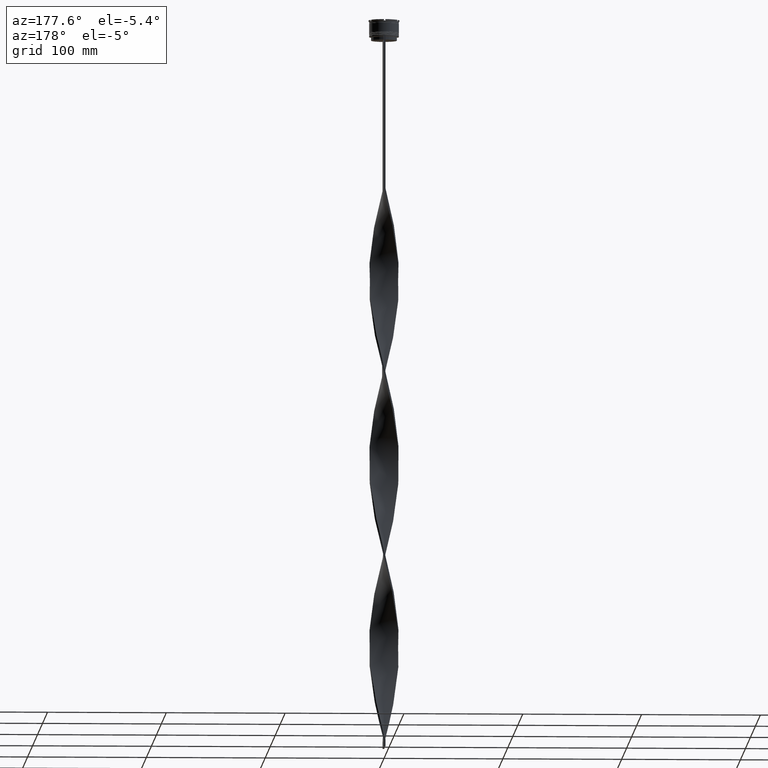
[diagram: clean part render]
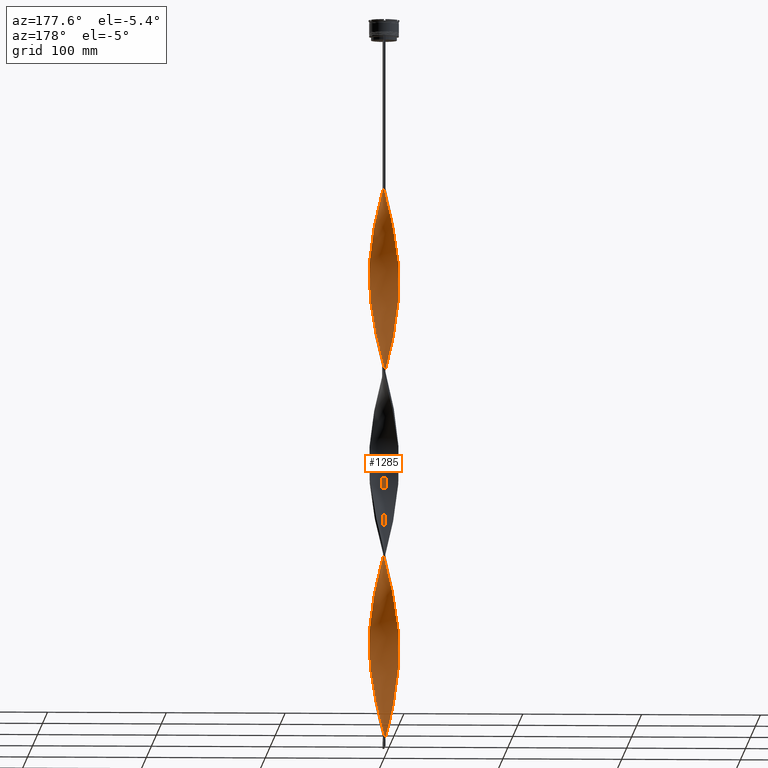
[diagram: same view with one face highlighted and labeled with its STEP entity id]
A machine part, auxiliary view. The second image highlights one B-rep face of the part: STEP entity #1285.
In plain terms, the highlighted face is a freeform B-spline surface patch.
Its self-contained STEP definition (entity closure, byte-faithful):
#3 = CARTESIAN_POINT ( 'NONE',  ( -9.690996458280331183, -7.969804989054253497, -407.0666666666666629 ) ) ;
#6 = CARTESIAN_POINT ( 'NONE',  ( 12.11996919947063311, 3.149420042465475245, -391.5333333333334167 ) ) ;
#11 = CARTESIAN_POINT ( 'NONE',  ( -9.644549487540052368, 8.025949731984795221, -338.7200000000000273 ) ) ;
#24 = CARTESIAN_POINT ( 'NONE',  ( -8.562581101809287887, 9.171445294657457836, -332.5066666666667743 ) ) ;
#29 = CARTESIAN_POINT ( 'NONE',  ( -0.7499999999999962252, -12.50000000000000000, -298.3333333333333144 ) ) ;
#36 = CARTESIAN_POINT ( 'NONE',  ( -11.33752076354115879, 5.375297838653132487, -351.1466666666667606 ) ) ;
#43 = CARTESIAN_POINT ( 'NONE',  ( -0.03643334067062180964, 12.54718600044023979, -146.1066666666667118 ) ) ;
#50 = VECTOR ( 'NONE', #1716, 1000.000000000000000 ) ;
#54 = CARTESIAN_POINT ( 'NONE',  ( 9.103565294674670128, -8.598697513321127417, -490.9466666666667152 ) ) ;
#59 = CARTESIAN_POINT ( 'NONE',  ( -8.562581101809280781, -9.171445294657461389, -574.8266666666667106 ) ) ;
#64 = CARTESIAN_POINT ( 'NONE',  ( -0.8225793935679387436, -12.49543369160420170, -447.4533333333333758 ) ) ;
#70 = CARTESIAN_POINT ( 'NONE',  ( -3.155646990963155485, 12.14393247619489813, -158.5333333333333883 ) ) ;
#76 = CARTESIAN_POINT ( 'NONE',  ( 10.15222897254093937, 7.331080881363972068, -559.2933333333334076 ) ) ;
#79 = CARTESIAN_POINT ( 'NONE',  ( -6.076579735155670292, 10.97763101221075743, -481.6266666666667788 ) ) ;
#83 = CARTESIAN_POINT ( 'NONE',  ( 11.65644370790820794, 4.576004816908210593, -546.8666666666666742 ) ) ;
#90 = CARTESIAN_POINT ( 'NONE',  ( 12.52471466338928074, -0.7514828798033591495, -376.0000000000000568 ) ) ;
#97 = CARTESIAN_POINT ( 'NONE',  ( 8.562581101809284334, -9.171445294657459613, -487.8400000000000887 ) ) ;
#100 = CARTESIAN_POINT ( 'NONE',  ( -9.690996458280338288, 7.969804989054245503, -500.2666666666666515 ) ) ;
#104 = CARTESIAN_POINT ( 'NONE',  ( 5.298889272974663278, -11.34611265908963418, -472.3066666666667288 ) ) ;
#112 = CARTESIAN_POINT ( 'NONE',  ( 9.690996458280336512, -7.969804989054249056, -344.9333333333334508 ) ) ;
#127 = CARTESIAN_POINT ( 'NONE',  ( -12.52242699500038015, -0.03636144779521361531, -534.4400000000000546 ) ) ;
#135 = CARTESIAN_POINT ( 'NONE',  ( 12.41912662004790313, -1.605550994275039667, -522.0133333333334349 ) ) ;
#141 = CARTESIAN_POINT ( 'NONE',  ( 0.03643334067062148351, -12.54718600044023979, -301.4400000000000546 ) ) ;
#147 = CARTESIAN_POINT ( 'NONE',  ( 10.99100368715144072, 6.000861433912924703, -553.0800000000000409 ) ) ;
#157 = CARTESIAN_POINT ( 'NONE',  ( 6.076579735155669404, 10.97763101221075921, -581.0400000000000773 ) ) ;
#163 = CARTESIAN_POINT ( 'NONE',  ( 1.608725446465269382, -12.44368138276816360, -307.6533333333334213 ) ) ;
#173 = CARTESIAN_POINT ( 'NONE',  ( 7.404526080593734960, 10.12947172560163978, -264.1600000000000819 ) ) ;
#187 = CARTESIAN_POINT ( 'NONE',  ( -9.103565294674666575, -8.598697513321130970, -261.0533333333333417 ) ) ;
#200 = CARTESIAN_POINT ( 'NONE',  ( 12.52013932661148488, -0.8242057753937837017, -214.4533333333333758 ) ) ;
#219 = CARTESIAN_POINT ( 'NONE',  ( -10.99100368715144072, 6.000861433912922926, -509.5866666666666447 ) ) ;
#230 = CARTESIAN_POINT ( 'NONE',  ( -6.740552907874703514, 10.55355136890620038, -174.0666666666666629 ) ) ;
#239 = CARTESIAN_POINT ( 'NONE',  ( -12.52242699500038015, -0.03636144779521361531, -534.4400000000000546 ) ) ;
#249 = CARTESIAN_POINT ( 'NONE',  ( 6.679150936304339758, -10.59251824497200900, -167.8533333333333530 ) ) ;
#259 = CARTESIAN_POINT ( 'NONE',  ( -2.382186218714211545, 12.29380692948152820, -466.0933333333333621 ) ) ;
#272 = CARTESIAN_POINT ( 'NONE',  ( 10.61346148680154933, 6.692356773673695081, -245.5200000000000387 ) ) ;
#276 = CARTESIAN_POINT ( 'NONE',  ( -8.615698626491365530, 9.121564618826681681, -183.3866666666666845 ) ) ;
#287 = CARTESIAN_POINT ( 'NONE',  ( 5.298889272974663278, -11.34611265908963418, -161.6400000000000148 ) ) ;
#298 = CARTESIAN_POINT ( 'NONE',  ( -0.03643334067062040105, -12.54718600044023979, -450.5600000000000023 ) ) ;
#309 = CARTESIAN_POINT ( 'NONE',  ( -11.36854588750133388, 5.309366094152151661, -512.6933333333333849 ) ) ;
#317 = CARTESIAN_POINT ( 'NONE',  ( -0.7499999999999962252, -12.50000000000000000, -609.0000000000000000 ) ) ;
#323 = CARTESIAN_POINT ( 'NONE',  ( -2.382186218714207548, -12.29380692948152998, -441.2400000000000091 ) ) ;
#326 = CARTESIAN_POINT ( 'NONE',  ( -2.310751445539660054, -12.30743384125774575, -292.1200000000000614 ) ) ;
#333 = CARTESIAN_POINT ( 'NONE',  ( 12.11996919947063134, -3.149420042465478353, -205.1333333333333542 ) ) ;
#337 = CARTESIAN_POINT ( 'NONE',  ( -12.52013932661148488, -0.8242057753937852560, -226.8800000000000523 ) ) ;
#343 = CARTESIAN_POINT ( 'NONE',  ( -0.7500000000000042188, 12.50000000000000000, -298.3333333333333144 ) ) ;
#348 = CARTESIAN_POINT ( 'NONE',  ( 6.740552907874707067, -10.55355136890619683, -329.4000000000000341 ) ) ;
#355 = CARTESIAN_POINT ( 'NONE',  ( -4.585052370405619193, 11.67949051451277143, -313.8666666666666742 ) ) ;
#362 = CARTESIAN_POINT ( 'NONE',  ( -2.382186218714211545, 12.29380692948152820, -155.4266666666666765 ) ) ;
#374 = CARTESIAN_POINT ( 'NONE',  ( -11.94434152831508911, -3.842643539664265973, -388.4266666666667334 ) ) ;
#377 = CARTESIAN_POINT ( 'NONE',  ( 12.13805464816931767, -3.078981870368074691, -366.6800000000000068 ) ) ;
#381 = CARTESIAN_POINT ( 'NONE',  ( 12.13805464816931412, 3.078981870368077356, -229.9866666666666788 ) ) ;
#388 = CARTESIAN_POINT ( 'NONE',  ( -0.8225793935679445168, 12.49543369160420347, -149.2133333333333383 ) ) ;
#398 = CARTESIAN_POINT ( 'NONE',  ( -8.010112353542544028, -9.625518172214164281, -416.3866666666666561 ) ) ;
#401 = CARTESIAN_POINT ( 'NONE',  ( 9.644549487540052368, 8.025949731984795221, -413.2800000000000864 ) ) ;
#405 = CARTESIAN_POINT ( 'NONE',  ( 12.52013932661148665, -0.8242057753937837017, -214.4533333333333758 ) ) ;
#411 = CARTESIAN_POINT ( 'NONE',  ( -9.153347542385848357, 8.545684803940464036, -186.4933333333333394 ) ) ;
#422 = CARTESIAN_POINT ( 'NONE',  ( -1.536433340670619652, -12.45281399955976553, -295.2266666666667447 ) ) ;
#429 = CARTESIAN_POINT ( 'NONE',  ( -12.52013932661148665, 0.8242057753937772624, -369.7866666666666333 ) ) ;
#437 = CARTESIAN_POINT ( 'NONE',  ( 0.7500000000000002220, 12.50000000000000000, -143.0000000000000284 ) ) ;
#445 = CARTESIAN_POINT ( 'NONE',  ( 0.8225793935679426294, 12.49543369160420347, -602.7866666666667470 ) ) ;
#450 = CARTESIAN_POINT ( 'NONE',  ( -12.31811391348432316, -2.386896213156300295, -543.7599999999999909 ) ) ;
#455 = CARTESIAN_POINT ( 'NONE',  ( 12.33176776802354624, 2.315320201071887851, -537.5466666666667379 ) ) ;
#460 = CARTESIAN_POINT ( 'NONE',  ( 2.382186218714214210, -12.29380692948152820, -310.7600000000000477 ) ) ;
#466 = CARTESIAN_POINT ( 'NONE',  ( 12.11996919947063134, -3.149420042465478353, -515.8000000000000682 ) ) ;
#469 = CARTESIAN_POINT ( 'NONE',  ( -8.615698626491365530, 9.121564618826681681, -494.0533333333333985 ) ) ;
#474 = CARTESIAN_POINT ( 'NONE',  ( -8.010112353542544028, -9.625518172214164281, -416.3866666666666561 ) ) ;
#482 = CARTESIAN_POINT ( 'NONE',  ( 3.904224544142290032, -11.89829948811664906, -316.9733333333333576 ) ) ;
#488 = CARTESIAN_POINT ( 'NONE',  ( 12.52471466338928074, 0.7514828798033589274, -531.3333333333335986 ) ) ;
#491 = CARTESIAN_POINT ( 'NONE',  ( -10.99100368715144072, 6.000861433912922926, -509.5866666666666447 ) ) ;
#496 = CARTESIAN_POINT ( 'NONE',  ( 7.345575697064968601, -10.17230168627752107, -481.6266666666667788 ) ) ;
#504 = CARTESIAN_POINT ( 'NONE',  ( 5.364690916238544105, -11.31514875612458226, -323.1866666666667243 ) ) ;
#512 = CARTESIAN_POINT ( 'NONE',  ( 3.155646990963151932, 12.14393247619489813, -593.4666666666666970 ) ) ;
#520 = CARTESIAN_POINT ( 'NONE',  ( -3.835060960407159047, -11.92077209873424870, -596.5733333333333803 ) ) ;
#528 = CARTESIAN_POINT ( 'NONE',  ( 7.404526080593734960, 10.12947172560163978, -574.8266666666665969 ) ) ;
#535 = CARTESIAN_POINT ( 'NONE',  ( 12.13805464816931767, -3.078981870368074691, -366.6800000000000068 ) ) ;
#545 = CARTESIAN_POINT ( 'NONE',  ( -0.03643334067062180964, 12.54718600044023979, -456.7733333333334258 ) ) ;
#556 = CARTESIAN_POINT ( 'NONE',  ( -5.298889272974661502, -11.34611265908963595, -279.6933333333333280 ) ) ;
#580 = CARTESIAN_POINT ( 'NONE',  ( -12.33176776802354802, 2.315320201071886519, -525.1200000000001182 ) ) ;
#599 = CARTESIAN_POINT ( 'NONE',  ( -9.153347542385848357, 8.545684803940464036, -186.4933333333333394 ) ) ;
#609 = CARTESIAN_POINT ( 'NONE',  ( -6.740552907874703514, 10.55355136890620038, -484.7333333333333485 ) ) ;
#622 = CARTESIAN_POINT ( 'NONE',  ( 0.8225793935679426294, 12.49543369160420347, -602.7866666666667470 ) ) ;
#630 = CARTESIAN_POINT ( 'NONE',  ( -5.364690916238543217, 11.31514875612458226, -478.5200000000000387 ) ) ;
#640 = CARTESIAN_POINT ( 'NONE',  ( 10.99100368715144072, 6.000861433912924703, -242.4133333333333553 ) ) ;
#642 = CARTESIAN_POINT ( 'NONE',  ( -3.904224544142286035, 11.89829948811665083, -161.6400000000000148 ) ) ;
#650 = CARTESIAN_POINT ( 'NONE',  ( 0.7500000000000002220, -12.50000000000000000, -143.0000000000000284 ) ) ;
#662 = CARTESIAN_POINT ( 'NONE',  ( -0.8225793935679387436, -12.49543369160420170, -447.4533333333333758 ) ) ;
#678 = CARTESIAN_POINT ( 'NONE',  ( -6.076579735155669404, 10.97763101221075921, -481.6266666666667788 ) ) ;
#694 = CARTESIAN_POINT ( 'NONE',  ( -3.904224544142285147, -11.89829948811665261, -435.0266666666667561 ) ) ;
#697 = CARTESIAN_POINT ( 'NONE',  ( -10.57441756647771847, -6.753880147568761316, -251.7333333333334338 ) ) ;
#702 = CARTESIAN_POINT ( 'NONE',  ( 10.15222897254093937, 7.331080881363972068, -248.6266666666666936 ) ) ;
#715 = CARTESIAN_POINT ( 'NONE',  ( -1.608725446465268050, -12.44368138276816538, -444.3466666666668061 ) ) ;
#717 = CARTESIAN_POINT ( 'NONE',  ( -11.92182448545694129, -3.911943871774655967, -239.3066666666667288 ) ) ;
#723 = CARTESIAN_POINT ( 'NONE',  ( 12.42824121570641083, 1.533401540437621557, -223.7733333333333405 ) ) ;
#728 = CARTESIAN_POINT ( 'NONE',  ( -10.99100368715144072, 6.000861433912922926, -198.9200000000000159 ) ) ;
#734 = CARTESIAN_POINT ( 'NONE',  ( -7.345575697064969489, 10.17230168627751929, -326.2933333333333508 ) ) ;
#738 = CARTESIAN_POINT ( 'NONE',  ( 12.33176776802354624, -2.315320201071879858, -369.7866666666666902 ) ) ;
#747 = CARTESIAN_POINT ( 'NONE',  ( 0.8225793935679426294, 12.49543369160420347, -292.1200000000000614 ) ) ;
#755 = CARTESIAN_POINT ( 'NONE',  ( -11.33752076354115701, -5.375297838653134264, -245.5200000000000387 ) ) ;
#761 = CARTESIAN_POINT ( 'NONE',  ( -0.7499999999999988898, -4.166666666666667851, -609.0000000000000000 ) ) ;
#766 = CARTESIAN_POINT ( 'NONE',  ( -9.153347542385844804, -8.545684803940465812, -410.1733333333334031 ) ) ;
#769 = CARTESIAN_POINT ( 'NONE',  ( 11.62967262449904915, 4.643620855213893783, -397.7466666666666697 ) ) ;
#774 = CARTESIAN_POINT ( 'NONE',  ( 12.52471466338928074, 0.7514828798033589274, -220.6666666666666856 ) ) ;
#791 = CARTESIAN_POINT ( 'NONE',  ( -5.298889272974661502, -11.34611265908963595, -279.6933333333333280 ) ) ;
#796 = CARTESIAN_POINT ( 'NONE',  ( -1.536433340670622316, 12.45281399955976553, -301.4400000000000546 ) ) ;
#801 = CARTESIAN_POINT ( 'NONE',  ( -12.33176776802354802, 2.315320201071886519, -214.4533333333333758 ) ) ;
#808 = CARTESIAN_POINT ( 'NONE',  ( 11.65644370790820794, 4.576004816908210593, -546.8666666666666742 ) ) ;
#812 = CARTESIAN_POINT ( 'NONE',  ( -12.33176776802354624, 2.315320201071886075, -525.1200000000001182 ) ) ;
#818 = CARTESIAN_POINT ( 'NONE',  ( 0.7500000000000002220, -12.50000000000000000, -453.6666666666667425 ) ) ;
#825 = CARTESIAN_POINT ( 'NONE',  ( 4.585052370405608535, 11.67949051451277320, -438.1333333333334394 ) ) ;
#841 = CARTESIAN_POINT ( 'NONE',  ( -0.8225793935679445168, 12.49543369160420347, -459.8799999999999955 ) ) ;
#845 = ORIENTED_EDGE ( 'NONE', *, *, #2576, .T. ) ;
#847 = CARTESIAN_POINT ( 'NONE',  ( -9.690996458280331183, -7.969804989054254385, -407.0666666666666629 ) ) ;
#853 = CARTESIAN_POINT ( 'NONE',  ( 12.42824121570641083, -1.533401540437619115, -372.8933333333333735 ) ) ;
#859 = CARTESIAN_POINT ( 'NONE',  ( 11.62967262449904915, -4.643620855213893783, -509.5866666666666447 ) ) ;
#862 = CARTESIAN_POINT ( 'NONE',  ( 0.7500000000000002220, 12.50000000000000000, -453.6666666666667425 ) ) ;
#865 = EDGE_LOOP ( 'NONE', ( #4086, #845, #962, #2198 ) ) ;
#869 = CARTESIAN_POINT ( 'NONE',  ( 10.57441756647771847, -6.753880147568761316, -500.2666666666666515 ) ) ;
#875 = CARTESIAN_POINT ( 'NONE',  ( 9.103565294674663022, 8.598697513321132746, -416.3866666666666561 ) ) ;
#880 = CARTESIAN_POINT ( 'NONE',  ( 5.364690916238542329, 11.31514875612458226, -584.1466666666666470 ) ) ;
#890 = CARTESIAN_POINT ( 'NONE',  ( -11.65644370790820972, -4.576004816908206152, -391.5333333333334167 ) ) ;
#899 = CARTESIAN_POINT ( 'NONE',  ( 10.99100368715144427, -6.000861433912917597, -354.2533333333333871 ) ) ;
#912 = CARTESIAN_POINT ( 'NONE',  ( -11.33752076354115701, -5.375297838653134264, -556.1866666666668380 ) ) ;
#918 = CARTESIAN_POINT ( 'NONE',  ( -8.615698626491365530, -9.121564618826681681, -413.2800000000000864 ) ) ;
#926 = CARTESIAN_POINT ( 'NONE',  ( 6.076579735155670292, -10.97763101221075743, -326.2933333333333508 ) ) ;
#936 = CARTESIAN_POINT ( 'NONE',  ( 6.012726175543712692, -11.01273480366649871, -164.7466666666666981 ) ) ;
#939 = CARTESIAN_POINT ( 'NONE',  ( -11.65644370790820794, 4.576004816908208817, -205.1333333333333542 ) ) ;
#948 = CARTESIAN_POINT ( 'NONE',  ( -10.10948352700888542, -7.389914939776780933, -565.5066666666666606 ) ) ;
#962 = ORIENTED_EDGE ( 'NONE', *, *, #4359, .F. ) ;
#963 = CARTESIAN_POINT ( 'NONE',  ( -0.03643334067062180964, 12.54718600044023979, -146.1066666666667118 ) ) ;
#971 = CARTESIAN_POINT ( 'NONE',  ( 7.345575697064968601, -10.17230168627752107, -170.9600000000000080 ) ) ;
#985 = CARTESIAN_POINT ( 'NONE',  ( 0.7500000000000002220, -12.50000000000000000, -143.0000000000000284 ) ) ;
#988 = CARTESIAN_POINT ( 'NONE',  ( -11.94434152831508911, 3.842643539664264196, -208.2400000000000659 ) ) ;
#1000 = CARTESIAN_POINT ( 'NONE',  ( -11.33752076354115701, -5.375297838653134264, -556.1866666666668380 ) ) ;
#1009 = CARTESIAN_POINT ( 'NONE',  ( 11.92182448545694129, -3.911943871774654191, -202.0266666666667277 ) ) ;
#1012 = CARTESIAN_POINT ( 'NONE',  ( 0.7500000000000002220, 12.50000000000000000, -143.0000000000000284 ) ) ;
#1013 = CARTESIAN_POINT ( 'NONE',  ( 3.155646990963152376, 12.14393247619489813, -593.4666666666666970 ) ) ;
#1021 = CARTESIAN_POINT ( 'NONE',  ( -0.8225793935679445168, 12.49543369160420347, -459.8799999999999955 ) ) ;
#1032 = CARTESIAN_POINT ( 'NONE',  ( 3.085069550408702010, -12.16205368295573130, -152.3200000000000500 ) ) ;
#1034 = CARTESIAN_POINT ( 'NONE',  ( -12.31811391348432316, -2.386896213156300295, -233.0933333333333906 ) ) ;
#1043 = CARTESIAN_POINT ( 'NONE',  ( 9.103565294674670128, -8.598697513321127417, -180.2800000000000296 ) ) ;
#1057 = CARTESIAN_POINT ( 'NONE',  ( -3.835060960407161712, 11.92077209873424870, -310.7600000000000477 ) ) ;
#1060 = CARTESIAN_POINT ( 'NONE',  ( 5.298889272974663278, 11.34611265908963595, -435.0266666666667561 ) ) ;
#1071 = CARTESIAN_POINT ( 'NONE',  ( -12.42824121570641083, -1.533401540437625332, -379.1066666666666833 ) ) ;
#1089 = CARTESIAN_POINT ( 'NONE',  ( -11.33752076354115879, 5.375297838653132487, -351.1466666666667038 ) ) ;
#1091 = CARTESIAN_POINT ( 'NONE',  ( -11.62967262449904915, -4.643620855213893783, -242.4133333333333553 ) ) ;
#1097 = CARTESIAN_POINT ( 'NONE',  ( -12.52471466338928074, -0.7514828798033545976, -376.0000000000000568 ) ) ;
#1102 = CARTESIAN_POINT ( 'NONE',  ( -3.904224544142286035, 11.89829948811665083, -161.6400000000000148 ) ) ;
#1111 = CARTESIAN_POINT ( 'NONE',  ( -11.92182448545694129, 3.911943871774654191, -357.3600000000000705 ) ) ;
#1114 = CARTESIAN_POINT ( 'NONE',  ( 10.61346148680155110, -6.692356773673693304, -351.1466666666667038 ) ) ;
#1119 = CARTESIAN_POINT ( 'NONE',  ( 11.92182448545694129, -3.911943871774654635, -202.0266666666667277 ) ) ;
#1124 = CARTESIAN_POINT ( 'NONE',  ( -10.95596916500943685, -6.064588993110949566, -248.6266666666666936 ) ) ;
#1133 = CARTESIAN_POINT ( 'NONE',  ( -11.62967262449905270, 4.643620855213886678, -354.2533333333333871 ) ) ;
#1139 = CARTESIAN_POINT ( 'NONE',  ( 11.36854588750133388, -5.309366094152151661, -357.3600000000000705 ) ) ;
#1148 = CARTESIAN_POINT ( 'NONE',  ( -10.57441756647771669, 6.753880147568764869, -344.9333333333334508 ) ) ;
#1162 = CARTESIAN_POINT ( 'NONE',  ( -6.740552907874695521, -10.55355136890620216, -422.6000000000000227 ) ) ;
#1165 = CARTESIAN_POINT ( 'NONE',  ( 6.012726175543706475, 11.01273480366650048, -431.9200000000000728 ) ) ;
#1170 = CARTESIAN_POINT ( 'NONE',  ( 9.690996458280338288, 7.969804989054246391, -251.7333333333334338 ) ) ;
#1176 = CARTESIAN_POINT ( 'NONE',  ( -5.364690916238543217, 11.31514875612458226, -167.8533333333333530 ) ) ;
#1182 = CARTESIAN_POINT ( 'NONE',  ( 9.690996458280338288, 7.969804989054245503, -562.4000000000000909 ) ) ;
#1189 = CARTESIAN_POINT ( 'NONE',  ( 11.36854588750133388, 5.309366094152153437, -549.9733333333333576 ) ) ;
#1195 = CARTESIAN_POINT ( 'NONE',  ( 12.11996919947063311, 3.149420042465475245, -391.5333333333334167 ) ) ;
#1203 = CARTESIAN_POINT ( 'NONE',  ( 12.42824121570641083, 1.533401540437621557, -534.4400000000000546 ) ) ;
#1206 = CARTESIAN_POINT ( 'NONE',  ( -12.52013932661148310, -0.8242057753937852560, -537.5466666666667379 ) ) ;
#1211 = CARTESIAN_POINT ( 'NONE',  ( 8.615698626491363754, 9.121564618826683457, -568.6133333333333439 ) ) ;
#1219 = CARTESIAN_POINT ( 'NONE',  ( -0.03643334067062180964, 12.54718600044023979, -456.7733333333334258 ) ) ;
#1228 = CARTESIAN_POINT ( 'NONE',  ( 11.36854588750133388, 5.309366094152153437, -549.9733333333334713 ) ) ;
#1233 = CARTESIAN_POINT ( 'NONE',  ( -3.085069550408701122, -12.16205368295573130, -599.6799999999999500 ) ) ;
#1238 = CARTESIAN_POINT ( 'NONE',  ( 2.310751445539661830, -12.30743384125774575, -459.8799999999999955 ) ) ;
#1244 = CARTESIAN_POINT ( 'NONE',  ( -0.7499999999999962252, -12.50000000000000000, -298.3333333333333144 ) ) ;
#1253 = CARTESIAN_POINT ( 'NONE',  ( -0.7499999999999962252, -12.50000000000000000, -609.0000000000000000 ) ) ;
#1260 = CARTESIAN_POINT ( 'NONE',  ( -10.15222897254093937, -7.331080881363972068, -403.9600000000000364 ) ) ;
#1267 = CARTESIAN_POINT ( 'NONE',  ( 11.36854588750133388, -5.309366094152151661, -357.3600000000001273 ) ) ;
#1276 = CARTESIAN_POINT ( 'NONE',  ( -7.345575697064968601, -10.17230168627752107, -581.0400000000000773 ) ) ;
#1281 = CARTESIAN_POINT ( 'NONE',  ( -9.153347542385844804, -8.545684803940465812, -410.1733333333334031 ) ) ;
#1285 = ADVANCED_FACE ( 'NONE', ( #4542 ), #4578, .T. ) ;
#1290 = CARTESIAN_POINT ( 'NONE',  ( 5.298889272974663278, 11.34611265908963595, -435.0266666666667561 ) ) ;
#1303 = CARTESIAN_POINT ( 'NONE',  ( 9.690996458280338288, 7.969804989054245503, -251.7333333333334338 ) ) ;
#1307 = CARTESIAN_POINT ( 'NONE',  ( -7.404526080593738513, 10.12947172560163800, -177.1733333333333462 ) ) ;
#1309 = CARTESIAN_POINT ( 'NONE',  ( 2.382186218714211989, 12.29380692948152820, -596.5733333333333803 ) ) ;
#1316 = CARTESIAN_POINT ( 'NONE',  ( -11.62967262449904915, -4.643620855213893783, -553.0800000000000409 ) ) ;
#1323 = LINE ( 'NONE', #2802, #50 ) ;
#1327 = CARTESIAN_POINT ( 'NONE',  ( 7.345575697064968601, -10.17230168627752107, -170.9600000000000364 ) ) ;
#1339 = CARTESIAN_POINT ( 'NONE',  ( 2.310751445539661830, -12.30743384125774575, -149.2133333333333383 ) ) ;
#1349 = CARTESIAN_POINT ( 'NONE',  ( 12.42824121570641083, 1.533401540437621557, -223.7733333333333405 ) ) ;
#1352 = CARTESIAN_POINT ( 'NONE',  ( 0.03643334067061888837, 12.54718600044023979, -605.8933333333335440 ) ) ;
#1354 = CARTESIAN_POINT ( 'NONE',  ( 0.7500000000000002220, -12.50000000000000000, -143.0000000000000284 ) ) ;
#1359 = CARTESIAN_POINT ( 'NONE',  ( -10.95596916500943685, -6.064588993110949566, -559.2933333333334076 ) ) ;
#1372 = CARTESIAN_POINT ( 'NONE',  ( 9.103565294674670128, -8.598697513321127417, -180.2800000000000296 ) ) ;
#1387 = CARTESIAN_POINT ( 'NONE',  ( -3.085069550408701122, -12.16205368295573130, -599.6799999999999500 ) ) ;
#1397 = CARTESIAN_POINT ( 'NONE',  ( 8.615698626491363754, 9.121564618826683457, -257.9466666666666583 ) ) ;
#1400 = CARTESIAN_POINT ( 'NONE',  ( -12.52242699500038015, -0.03636144779521361531, -223.7733333333333405 ) ) ;
#1409 = CARTESIAN_POINT ( 'NONE',  ( -11.92182448545694129, -3.911943871774656412, -549.9733333333333576 ) ) ;
#1421 = CARTESIAN_POINT ( 'NONE',  ( 3.155646990963151932, 12.14393247619489813, -282.8000000000000682 ) ) ;
#1423 = CARTESIAN_POINT ( 'NONE',  ( 11.92182448545693774, 3.911943871774660408, -394.6400000000000432 ) ) ;
#1430 = CARTESIAN_POINT ( 'NONE',  ( 6.076579735155669404, 10.97763101221075921, -270.3733333333333348 ) ) ;
#1444 = CARTESIAN_POINT ( 'NONE',  ( 3.835060960407158603, -11.92077209873424870, -466.0933333333333621 ) ) ;
#1448 = CARTESIAN_POINT ( 'NONE',  ( 10.95596916500943685, 6.064588993110948678, -403.9600000000000364 ) ) ;
#1458 = CARTESIAN_POINT ( 'NONE',  ( -10.95596916500943863, 6.064588993110942461, -348.0400000000000205 ) ) ;
#1464 = CARTESIAN_POINT ( 'NONE',  ( -10.15222897254094114, 7.331080881363969404, -192.7066666666667061 ) ) ;
#1472 = CARTESIAN_POINT ( 'NONE',  ( -12.31811391348432494, 2.386896213156294966, -363.5733333333334372 ) ) ;
#1475 = CARTESIAN_POINT ( 'NONE',  ( -10.95596916500943685, -6.064588993110949566, -248.6266666666666936 ) ) ;
#1479 = CARTESIAN_POINT ( 'NONE',  ( 10.99100368715144072, 6.000861433912924703, -242.4133333333333553 ) ) ;
#1495 = CARTESIAN_POINT ( 'NONE',  ( -6.012726175543711804, 11.01273480366649871, -320.0800000000000978 ) ) ;
#1499 = CARTESIAN_POINT ( 'NONE',  ( 11.33752076354115523, 5.375297838653137816, -400.8533333333334099 ) ) ;
#1504 = CARTESIAN_POINT ( 'NONE',  ( 12.33176776802354624, 2.315320201071887851, -226.8800000000000523 ) ) ;
#1520 = CARTESIAN_POINT ( 'NONE',  ( -5.364690916238543217, -11.31514875612458226, -428.8133333333333894 ) ) ;
#1525 = CARTESIAN_POINT ( 'NONE',  ( 7.954078399437118918, 9.671873490467493895, -422.6000000000000227 ) ) ;
#1533 = CARTESIAN_POINT ( 'NONE',  ( 11.62967262449904915, -4.643620855213893783, -198.9200000000000159 ) ) ;
#1547 = CARTESIAN_POINT ( 'NONE',  ( 9.644549487540052368, -8.025949731984795221, -494.0533333333333985 ) ) ;
#1551 = CARTESIAN_POINT ( 'NONE',  ( -4.585052370405612088, -11.67949051451277143, -593.4666666666666970 ) ) ;
#1556 = CARTESIAN_POINT ( 'NONE',  ( 10.10948352700888542, -7.389914939776779157, -497.1600000000000250 ) ) ;
#1572 = CARTESIAN_POINT ( 'NONE',  ( -10.57441756647771847, -6.753880147568761316, -562.4000000000000909 ) ) ;
#1577 = CARTESIAN_POINT ( 'NONE',  ( 9.690996458280338288, 7.969804989054246391, -562.4000000000000909 ) ) ;
#1583 = CARTESIAN_POINT ( 'NONE',  ( 1.536433340670621206, 12.45281399955976553, -450.5600000000000023 ) ) ;
#1590 = CARTESIAN_POINT ( 'NONE',  ( 11.94434152831508911, 3.842643539664265084, -543.7599999999999909 ) ) ;
#1593 = CARTESIAN_POINT ( 'NONE',  ( -12.41912662004790313, -1.605550994275043664, -540.6533333333334213 ) ) ;
#1598 = CARTESIAN_POINT ( 'NONE',  ( 6.679150936304339758, -10.59251824497200900, -478.5200000000000387 ) ) ;
#1609 = CARTESIAN_POINT ( 'NONE',  ( 11.65644370790820794, -4.576004816908210593, -360.4666666666666970 ) ) ;
#1622 = CARTESIAN_POINT ( 'NONE',  ( -6.679150936304338870, -10.59251824497200900, -584.1466666666666470 ) ) ;
#1627 = CARTESIAN_POINT ( 'NONE',  ( 1.536433340670622538, -12.45281399955976553, -456.7733333333334258 ) ) ;
#1633 = CARTESIAN_POINT ( 'NONE',  ( -6.679150936304338870, -10.59251824497200900, -273.4800000000000750 ) ) ;
#1639 = CARTESIAN_POINT ( 'NONE',  ( 8.615698626491363754, 9.121564618826683457, -568.6133333333334576 ) ) ;
#1650 = CARTESIAN_POINT ( 'NONE',  ( 5.364690916238542329, 11.31514875612458226, -584.1466666666666470 ) ) ;
#1657 = CARTESIAN_POINT ( 'NONE',  ( -4.585052370405612976, -11.67949051451277143, -282.8000000000000682 ) ) ;
#1665 = CARTESIAN_POINT ( 'NONE',  ( 6.740552907874705291, 10.55355136890619860, -267.2666666666667084 ) ) ;
#1681 = CARTESIAN_POINT ( 'NONE',  ( 10.10948352700888186, 7.389914939776782710, -410.1733333333334031 ) ) ;
#1701 = CARTESIAN_POINT ( 'NONE',  ( 1.608725446465266717, 12.44368138276816538, -599.6799999999999500 ) ) ;
#1709 = CARTESIAN_POINT ( 'NONE',  ( -12.42824121570641083, 1.533401540437620225, -528.2266666666666879 ) ) ;
#1716 = DIRECTION ( 'NONE',  ( 0.000000000000000000, 1.000000000000000000, 0.000000000000000000 ) ) ;
#1719 = CARTESIAN_POINT ( 'NONE',  ( 10.95596916500943863, -6.064588993110946014, -192.7066666666667061 ) ) ;
#1721 = CARTESIAN_POINT ( 'NONE',  ( -11.36854588750133388, 5.309366094152151661, -202.0266666666667277 ) ) ;
#1729 = CARTESIAN_POINT ( 'NONE',  ( -12.11996919947063134, -3.149420042465479241, -546.8666666666666742 ) ) ;
#1739 = CARTESIAN_POINT ( 'NONE',  ( 4.585052370405615640, -11.67949051451277143, -158.5333333333333883 ) ) ;
#1741 = CARTESIAN_POINT ( 'NONE',  ( -12.13805464816931767, 3.078981870368073359, -211.3466666666666924 ) ) ;
#1749 = CARTESIAN_POINT ( 'NONE',  ( -8.615698626491365530, 9.121564618826681681, -494.0533333333333985 ) ) ;
#1770 = CARTESIAN_POINT ( 'NONE',  ( -12.33176776802354624, 2.315320201071886075, -214.4533333333333758 ) ) ;
#1779 = CARTESIAN_POINT ( 'NONE',  ( 7.954078399437126023, -9.671873490467488566, -174.0666666666666629 ) ) ;
#1789 = CARTESIAN_POINT ( 'NONE',  ( 2.310751445539661830, -12.30743384125774575, -459.8799999999999955 ) ) ;
#1792 = CARTESIAN_POINT ( 'NONE',  ( -5.364690916238543217, 11.31514875612458226, -167.8533333333333530 ) ) ;
#1800 = CARTESIAN_POINT ( 'NONE',  ( -12.52013932661148488, -0.8242057753937852560, -537.5466666666667379 ) ) ;
#1812 = CARTESIAN_POINT ( 'NONE',  ( 0.03643334067061888837, 12.54718600044023979, -295.2266666666667447 ) ) ;
#1814 = CARTESIAN_POINT ( 'NONE',  ( 2.382186218714214210, -12.29380692948152820, -310.7600000000000477 ) ) ;
#1819 = CARTESIAN_POINT ( 'NONE',  ( 12.31811391348432316, -2.386896213156298963, -208.2400000000000659 ) ) ;
#1825 = CARTESIAN_POINT ( 'NONE',  ( -8.010112353542551134, 9.625518172214162504, -180.2800000000000296 ) ) ;
#1833 = CARTESIAN_POINT ( 'NONE',  ( -1.536433340670622094, 12.45281399955976553, -301.4400000000000546 ) ) ;
#1838 = CARTESIAN_POINT ( 'NONE',  ( 8.615698626491365530, -9.121564618826681681, -338.7200000000000273 ) ) ;
#1846 = CARTESIAN_POINT ( 'NONE',  ( -7.345575697064969489, 10.17230168627751929, -326.2933333333333508 ) ) ;
#1854 = CARTESIAN_POINT ( 'NONE',  ( -4.652802097321417030, 11.65266650003840709, -164.7466666666667265 ) ) ;
#1863 = CARTESIAN_POINT ( 'NONE',  ( -9.103565294674670128, 8.598697513321127417, -335.6133333333334008 ) ) ;
#1866 = CARTESIAN_POINT ( 'NONE',  ( 12.31811391348432316, 2.386896213156301183, -388.4266666666667334 ) ) ;
#1871 = CARTESIAN_POINT ( 'NONE',  ( -9.103565294674670128, 8.598697513321127417, -335.6133333333334008 ) ) ;
#1885 = CARTESIAN_POINT ( 'NONE',  ( 0.8225793935679426294, 12.49543369160420347, -292.1200000000000614 ) ) ;
#1889 = CARTESIAN_POINT ( 'NONE',  ( 9.690996458280336512, -7.969804989054249056, -344.9333333333334508 ) ) ;
#1893 = CARTESIAN_POINT ( 'NONE',  ( -3.835060960407161712, 11.92077209873424870, -310.7600000000000477 ) ) ;
#1913 = CARTESIAN_POINT ( 'NONE',  ( 5.364690916238544105, -11.31514875612458226, -323.1866666666667243 ) ) ;
#1921 = CARTESIAN_POINT ( 'NONE',  ( -3.904224544142285147, -11.89829948811665261, -435.0266666666667561 ) ) ;
#1929 = CARTESIAN_POINT ( 'NONE',  ( -10.10948352700888542, -7.389914939776780933, -254.8400000000000034 ) ) ;
#1936 = CARTESIAN_POINT ( 'NONE',  ( 7.404526080593734960, 10.12947172560163978, -574.8266666666667106 ) ) ;
#1939 = CARTESIAN_POINT ( 'NONE',  ( -12.42824121570641083, 1.533401540437620225, -528.2266666666666879 ) ) ;
#1944 = CARTESIAN_POINT ( 'NONE',  ( 10.99100368715144072, 6.000861433912924703, -553.0800000000000409 ) ) ;
#1950 = CARTESIAN_POINT ( 'NONE',  ( 3.155646990963159038, -12.14393247619489813, -313.8666666666666742 ) ) ;
#1960 = CARTESIAN_POINT ( 'NONE',  ( -1.608725446465267606, 12.44368138276816538, -462.9866666666667356 ) ) ;
#1965 = CARTESIAN_POINT ( 'NONE',  ( -0.03643334067062039411, -12.54718600044023979, -450.5600000000000023 ) ) ;
#1972 = CARTESIAN_POINT ( 'NONE',  ( -8.562581101809282558, -9.171445294657461389, -264.1600000000000819 ) ) ;
#1978 = CARTESIAN_POINT ( 'NONE',  ( 1.608725446465266717, 12.44368138276816538, -599.6799999999999500 ) ) ;
#1981 = CARTESIAN_POINT ( 'NONE',  ( -11.65644370790820794, 4.576004816908208817, -515.8000000000000682 ) ) ;
#1986 = CARTESIAN_POINT ( 'NONE',  ( 11.33752076354116056, -5.375297838653129823, -506.4800000000001887 ) ) ;
#1996 = CARTESIAN_POINT ( 'NONE',  ( -7.954078399437126912, -9.671873490467486789, -267.2666666666667084 ) ) ;
#2012 = CARTESIAN_POINT ( 'NONE',  ( 3.085069550408702455, 12.16205368295573130, -444.3466666666668061 ) ) ;
#2017 = CARTESIAN_POINT ( 'NONE',  ( -11.94434152831508911, -3.842643539664266417, -388.4266666666667334 ) ) ;
#2023 = CARTESIAN_POINT ( 'NONE',  ( 10.95596916500943685, 6.064588993110948678, -403.9600000000000364 ) ) ;
#2032 = CARTESIAN_POINT ( 'NONE',  ( 11.33752076354116056, -5.375297838653129823, -195.8133333333333610 ) ) ;
#2045 = CARTESIAN_POINT ( 'NONE',  ( 7.404526080593742066, -10.12947172560163622, -332.5066666666668311 ) ) ;
#2072 = CARTESIAN_POINT ( 'NONE',  ( -2.310751445539660054, -12.30743384125774575, -602.7866666666667470 ) ) ;
#2087 = CARTESIAN_POINT ( 'NONE',  ( 7.954078399437126023, -9.671873490467488566, -174.0666666666666629 ) ) ;
#2089 = CARTESIAN_POINT ( 'NONE',  ( -10.99100368715144072, 6.000861433912922926, -198.9200000000000159 ) ) ;
#2098 = CARTESIAN_POINT ( 'NONE',  ( 10.10948352700888542, -7.389914939776779157, -186.4933333333333394 ) ) ;
#2118 = CARTESIAN_POINT ( 'NONE',  ( -6.012726175543710916, -11.01273480366650048, -587.2533333333335577 ) ) ;
#2130 = CARTESIAN_POINT ( 'NONE',  ( -6.076579735155670292, 10.97763101221075743, -170.9600000000000364 ) ) ;
#2138 = CARTESIAN_POINT ( 'NONE',  ( 3.085069550408702010, -12.16205368295573130, -152.3200000000000500 ) ) ;
#2157 = CARTESIAN_POINT ( 'NONE',  ( -12.52242699500038015, 0.03636144779521122833, -372.8933333333333735 ) ) ;
#2170 = CARTESIAN_POINT ( 'NONE',  ( -9.153347542385848357, 8.545684803940464036, -497.1600000000000250 ) ) ;
#2184 = CARTESIAN_POINT ( 'NONE',  ( 3.085069550408702010, -12.16205368295573130, -462.9866666666667356 ) ) ;
#2187 = CARTESIAN_POINT ( 'NONE',  ( -8.562581101809280781, -9.171445294657461389, -264.1600000000000819 ) ) ;
#2194 = CARTESIAN_POINT ( 'NONE',  ( 9.153347542385848357, 8.545684803940464036, -254.8400000000000034 ) ) ;
#2198 = ORIENTED_EDGE ( 'NONE', *, *, #2437, .F. ) ;
#2199 = CARTESIAN_POINT ( 'NONE',  ( -1.608725446465267606, 12.44368138276816538, -152.3200000000000500 ) ) ;
#2210 = CARTESIAN_POINT ( 'NONE',  ( -6.076579735155665851, -10.97763101221075743, -425.7066666666667061 ) ) ;
#2213 = CARTESIAN_POINT ( 'NONE',  ( -7.345575697064968601, -10.17230168627752107, -270.3733333333333348 ) ) ;
#2219 = CARTESIAN_POINT ( 'NONE',  ( -3.085069550408703787, 12.16205368295572953, -307.6533333333334213 ) ) ;
#2234 = CARTESIAN_POINT ( 'NONE',  ( -10.95596916500943863, 6.064588993110942461, -348.0400000000000205 ) ) ;
#2239 = CARTESIAN_POINT ( 'NONE',  ( 12.42824121570641083, -1.533401540437619115, -372.8933333333333735 ) ) ;
#2248 = CARTESIAN_POINT ( 'NONE',  ( -6.679150936304340647, 10.59251824497200900, -323.1866666666667243 ) ) ;
#2255 = CARTESIAN_POINT ( 'NONE',  ( -10.57441756647771847, -6.753880147568761316, -251.7333333333334338 ) ) ;
#2263 = CARTESIAN_POINT ( 'NONE',  ( -8.615698626491365530, -9.121564618826681681, -413.2800000000000864 ) ) ;
#2266 = CARTESIAN_POINT ( 'NONE',  ( 10.57441756647771136, 6.753880147568771086, -407.0666666666666629 ) ) ;
#2271 = CARTESIAN_POINT ( 'NONE',  ( 1.608725446465266717, 12.44368138276816538, -289.0133333333333212 ) ) ;
#2277 = CARTESIAN_POINT ( 'NONE',  ( -8.615698626491365530, 9.121564618826681681, -183.3866666666666845 ) ) ;
#2289 = CARTESIAN_POINT ( 'NONE',  ( 0.8225793935679449609, -12.49543369160420347, -304.5466666666666811 ) ) ;
#2293 = CARTESIAN_POINT ( 'NONE',  ( -11.62967262449905270, 4.643620855213886678, -354.2533333333333871 ) ) ;
#2307 = CARTESIAN_POINT ( 'NONE',  ( 11.92182448545694129, -3.911943871774654191, -512.6933333333334986 ) ) ;
#2313 = CARTESIAN_POINT ( 'NONE',  ( -10.95596916500943685, -6.064588993110949566, -559.2933333333334076 ) ) ;
#2320 = CARTESIAN_POINT ( 'NONE',  ( 10.95596916500943863, -6.064588993110946014, -503.3733333333334485 ) ) ;
#2327 = CARTESIAN_POINT ( 'NONE',  ( 3.835060960407154607, 11.92077209873424870, -441.2400000000000091 ) ) ;
#2334 = CARTESIAN_POINT ( 'NONE',  ( 6.740552907874705291, 10.55355136890619860, -577.9333333333333940 ) ) ;
#2338 = CARTESIAN_POINT ( 'NONE',  ( -3.904224544142286035, 11.89829948811665083, -472.3066666666667288 ) ) ;
#2345 = CARTESIAN_POINT ( 'NONE',  ( -7.404526080593736737, -10.12947172560163978, -419.4933333333333394 ) ) ;
#2352 = CARTESIAN_POINT ( 'NONE',  ( 9.153347542385848357, -8.545684803940462260, -341.8266666666667106 ) ) ;
#2360 = CARTESIAN_POINT ( 'NONE',  ( 4.652802097321414365, 11.65266650003840887, -587.2533333333335577 ) ) ;
#2364 = CARTESIAN_POINT ( 'NONE',  ( -3.155646990963155485, 12.14393247619489813, -469.2000000000001023 ) ) ;
#2371 = CARTESIAN_POINT ( 'NONE',  ( 12.11996919947063134, -3.149420042465478353, -515.8000000000000682 ) ) ;
#2378 = CARTESIAN_POINT ( 'NONE',  ( 7.954078399437118918, 9.671873490467493895, -422.6000000000000227 ) ) ;
#2387 = CARTESIAN_POINT ( 'NONE',  ( -11.62967262449904915, -4.643620855213893783, -553.0800000000000409 ) ) ;
#2395 = CARTESIAN_POINT ( 'NONE',  ( 11.94434152831508911, 3.842643539664265528, -543.7599999999999909 ) ) ;
#2404 = CARTESIAN_POINT ( 'NONE',  ( 10.15222897254094470, -7.331080881363965851, -348.0400000000000205 ) ) ;
#2405 = CARTESIAN_POINT ( 'NONE',  ( 0.7500000000000002220, 12.50000000000000000, -143.0000000000000284 ) ) ;
#2416 = CARTESIAN_POINT ( 'NONE',  ( -9.103565294674666575, -8.598697513321130970, -571.7200000000000273 ) ) ;
#2417 =( BOUNDED_CURVE ( )  B_SPLINE_CURVE ( 2, ( #985, #4743, #4303, #1032, #3605, #1739, #3628, #936, #249, #1327, #2087, #3248, #1372, #4326, #4771, #2877, #1719, #2032, #4721, #1009, #3575, #3649, #4398, #200, #2828, #4034, #1349, #4347, #3551, #2490, #4376, #4012, #640, #272, #3275, #1303, #2440, #1397, #2899, #173, #1665, #3174, #4669, #3940, #3724, #1421, #4089, #2608, #1885, #1812, #343, #1833, #3679, #2982, #1057, #4113, #3401, #1495, #3356, #734, #3751, #24, #1863, #3005, #2586, #4848, #2234, #1089, #1133, #1111, #3776, #1472, #2561, #4067, #2157, #2630, #4474, #4495, #2957, #374, #3380, #4524, #4140, #2927, #3327, #3, #766, #2263, #398, #4420, #1162, #2210, #1520, #3030, #694, #2659, #323, #715, #662, #298, #4451, #4816, #1789, #2184, #1444, #3302, #4794, #3702, #2752, #3424, #3472, #97, #54, #1547, #2680, #4184, #3078, #3101, #859, #2307, #466, #2700, #3057, #4549, #4573, #488, #1203, #4597, #3524, #1590, #808, #1228, #147, #2730, #76, #1182, #3821, #1639, #4230, #1936, #2334, #4622, #880, #2360, #3866, #512, #4204, #1978, #445, #3129, #3450 ),
 .UNSPECIFIED., .F., .T. ) 
 B_SPLINE_CURVE_WITH_KNOTS ( ( 3, 2, 2, 2, 2, 2, 2, 2, 2, 2, 2, 2, 2, 2, 2, 2, 2, 2, 2, 2, 2, 2, 2, 2, 2, 2, 2, 2, 2, 2, 2, 2, 2, 2, 2, 2, 2, 2, 2, 2, 2, 2, 2, 2, 2, 2, 2, 2, 2, 2, 2, 2, 2, 2, 2, 2, 2, 2, 2, 2, 2, 2, 2, 2, 2, 2, 2, 2, 2, 2, 2, 2, 2, 2, 2, 3 ),
 ( 0.000000000000000000, 0.01000000000000000021, 0.02000000000000000042, 0.02999999999999999889, 0.04000000000000000083, 0.05000000000000000971, 0.05999999999999999778, 0.07000000000000000666, 0.08000000000000000167, 0.09000000000000001055, 0.1000000000000000194, 0.1100000000000000006, 0.1199999999999999956, 0.1300000000000000044, 0.1400000000000000133, 0.1499999999999999944, 0.1600000000000000033, 0.1700000000000000122, 0.1800000000000000211, 0.1900000000000000300, 0.2000000000000000389, 0.2099999999999999922, 0.2200000000000000011, 0.2300000000000000100, 0.2399999999999999911, 0.2500000000000000000, 0.2600000000000000089, 0.2700000000000000178, 0.2800000000000000266, 0.2899999999999999800, 0.2999999999999999889, 0.3099999999999999978, 0.3200000000000000067, 0.3300000000000000155, 0.3400000000000000244, 0.3499999999999999223, 0.3600000000000000422, 0.3699999999999999400, 0.3800000000000000600, 0.3899999999999999578, 0.4000000000000000777, 0.4099999999999999756, 0.4199999999999999845, 0.4299999999999999933, 0.4400000000000000022, 0.4500000000000000111, 0.4600000000000000200, 0.4699999999999999734, 0.4799999999999999822, 0.4899999999999999911, 0.5000000000000000000, 0.5100000000000000089, 0.5200000000000000178, 0.5300000000000000266, 0.5400000000000000355, 0.5500000000000000444, 0.5600000000000000533, 0.5699999999999999512, 0.5799999999999999600, 0.5899999999999999689, 0.5999999999999999778, 0.6099999999999999867, 0.6199999999999999956, 0.6300000000000000044, 0.6400000000000000133, 0.6500000000000000222, 0.6600000000000000311, 0.6700000000000000400, 0.6800000000000000488, 0.6899999999999999467, 0.6999999999999998446, 0.7099999999999999645, 0.7200000000000000844, 0.7299999999999999822, 0.7399999999999998801, 0.7500000000000000000 ),
 .UNSPECIFIED. ) 
 CURVE ( )  GEOMETRIC_REPRESENTATION_ITEM ( )  RATIONAL_B_SPLINE_CURVE ( ( 1.000000000000000000, 0.9980267284282715590, 1.000000000000000000, 0.9980267284282715590, 1.000000000000000000, 0.9980267284282715590, 1.000000000000000000, 0.9980267284282715590, 1.000000000000000000, 0.9980267284282715590, 1.000000000000000000, 0.9980267284282715590, 1.000000000000000000, 0.9980267284282715590, 1.000000000000000000, 0.9980267284282715590, 1.000000000000000000, 0.9980267284282715590, 1.000000000000000000, 0.9980267284282715590, 1.000000000000000000, 0.9980267284282715590, 1.000000000000000000, 0.9980267284282715590, 1.000000000000000000, 0.9980267284282715590, 1.000000000000000000, 0.9980267284282715590, 1.000000000000000000, 0.9980267284282715590, 1.000000000000000000, 0.9980267284282715590, 1.000000000000000000, 0.9980267284282715590, 1.000000000000000000, 0.9980267284282715590, 1.000000000000000000, 0.9980267284282715590, 1.000000000000000000, 0.9980267284282715590, 1.000000000000000000, 0.9980267284282715590, 1.000000000000000000, 0.9980267284282715590, 1.000000000000000000, 0.9980267284282715590, 1.000000000000000000, 0.9980267284282715590, 1.000000000000000000, 0.9980267284282715590, 1.000000000000000000, 0.9980267284282715590, 1.000000000000000000, 0.9980267284282715590, 1.000000000000000000, 0.9980267284282715590, 1.000000000000000000, 0.9980267284282715590, 1.000000000000000000, 0.9980267284282715590, 1.000000000000000000, 0.9980267284282715590, 1.000000000000000000, 0.9980267284282715590, 1.000000000000000000, 0.9980267284282715590, 1.000000000000000000, 0.9980267284282715590, 1.000000000000000000, 0.9980267284282715590, 1.000000000000000000, 0.9980267284282715590, 1.000000000000000000, 0.9980267284282715590, 1.000000000000000000, 0.9980267284282715590, 1.000000000000000000, 0.9980267284282715590, 1.000000000000000000, 0.9980267284282715590, 1.000000000000000000, 0.9980267284282715590, 1.000000000000000000, 0.9980267284282715590, 1.000000000000000000, 0.9980267284282715590, 1.000000000000000000, 0.9980267284282715590, 1.000000000000000000, 0.9980267284282715590, 1.000000000000000000, 0.9980267284282715590, 1.000000000000000000, 0.9980267284282715590, 1.000000000000000000, 0.9980267284282715590, 1.000000000000000000, 0.9980267284282715590, 1.000000000000000000, 0.9980267284282715590, 1.000000000000000000, 0.9980267284282715590, 1.000000000000000000, 0.9980267284282715590, 1.000000000000000000, 0.9980267284282715590, 1.000000000000000000, 0.9980267284282715590, 1.000000000000000000, 0.9980267284282715590, 1.000000000000000000, 0.9980267284282715590, 1.000000000000000000, 0.9980267284282715590, 1.000000000000000000, 0.9980267284282715590, 1.000000000000000000, 0.9980267284282715590, 1.000000000000000000, 0.9980267284282715590, 1.000000000000000000, 0.9980267284282715590, 1.000000000000000000, 0.9980267284282715590, 1.000000000000000000, 0.9980267284282715590, 1.000000000000000000, 0.9980267284282715590, 1.000000000000000000, 0.9980267284282715590, 1.000000000000000000, 0.9980267284282715590, 1.000000000000000000, 0.9980267284282715590, 1.000000000000000000, 0.9980267284282715590, 1.000000000000000000, 0.9980267284282715590, 1.000000000000000000, 0.9980267284282715590, 1.000000000000000000, 0.9980267284282715590, 1.000000000000000000, 0.9980267284282715590, 1.000000000000000000, 0.9980267284282715590, 1.000000000000000000, 0.9980267284282715590, 1.000000000000000000, 0.9980267284282715590, 1.000000000000000000 ) ) 
 REPRESENTATION_ITEM ( '' )  );
#2422 = CARTESIAN_POINT ( 'NONE',  ( -6.076579735155664963, -10.97763101221075921, -425.7066666666667629 ) ) ;
#2429 = CARTESIAN_POINT ( 'NONE',  ( -1.536433340670619652, -12.45281399955976553, -295.2266666666667447 ) ) ;
#2437 = EDGE_CURVE ( 'NONE', #3227, #3071, #4238, .T. ) ;
#2440 = CARTESIAN_POINT ( 'NONE',  ( 9.153347542385848357, 8.545684803940464036, -254.8400000000000034 ) ) ;
#2443 = CARTESIAN_POINT ( 'NONE',  ( -12.41912662004790313, -1.605550994275043664, -229.9866666666666788 ) ) ;
#2451 = CARTESIAN_POINT ( 'NONE',  ( -9.103565294674666575, -8.598697513321130970, -571.7200000000000273 ) ) ;
#2466 = CARTESIAN_POINT ( 'NONE',  ( -1.608725446465267606, 12.44368138276816538, -152.3200000000000500 ) ) ;
#2476 = CARTESIAN_POINT ( 'NONE',  ( -10.15222897254094114, 7.331080881363969404, -503.3733333333334485 ) ) ;
#2490 = CARTESIAN_POINT ( 'NONE',  ( 11.94434152831508911, 3.842643539664265084, -233.0933333333333906 ) ) ;
#2502 = CARTESIAN_POINT ( 'NONE',  ( -5.298889272974661502, -11.34611265908963595, -590.3600000000000136 ) ) ;
#2514 = CARTESIAN_POINT ( 'NONE',  ( -0.8225793935679445168, 12.49543369160420347, -149.2133333333333383 ) ) ;
#2522 = CARTESIAN_POINT ( 'NONE',  ( -0.7499999999999962252, -12.50000000000000000, -609.0000000000000000 ) ) ;
#2542 = CARTESIAN_POINT ( 'NONE',  ( -9.644549487540050592, -8.025949731984796998, -568.6133333333333439 ) ) ;
#2561 = CARTESIAN_POINT ( 'NONE',  ( -12.41912662004790313, 1.605550994275040999, -366.6800000000000068 ) ) ;
#2565 = CARTESIAN_POINT ( 'NONE',  ( -11.33752076354115701, -5.375297838653134264, -245.5200000000000387 ) ) ;
#2572 = CARTESIAN_POINT ( 'NONE',  ( -12.13805464816931412, -3.078981870368081353, -385.3199999999999932 ) ) ;
#2576 = EDGE_CURVE ( 'NONE', #4079, #4623, #2417, .T. ) ;
#2578 = CARTESIAN_POINT ( 'NONE',  ( -9.644549487540050592, -8.025949731984796998, -257.9466666666666583 ) ) ;
#2586 = CARTESIAN_POINT ( 'NONE',  ( -10.10948352700888542, 7.389914939776777381, -341.8266666666667106 ) ) ;
#2589 = CARTESIAN_POINT ( 'NONE',  ( -9.103565294674666575, -8.598697513321130970, -261.0533333333333417 ) ) ;
#2595 = CARTESIAN_POINT ( 'NONE',  ( -6.012726175543712692, 11.01273480366649871, -320.0800000000000978 ) ) ;
#2608 = CARTESIAN_POINT ( 'NONE',  ( 1.608725446465266717, 12.44368138276816538, -289.0133333333333212 ) ) ;
#2610 = CARTESIAN_POINT ( 'NONE',  ( 10.99100368715144427, -6.000861433912917597, -354.2533333333333871 ) ) ;
#2616 = CARTESIAN_POINT ( 'NONE',  ( 11.94434152831508911, 3.842643539664265528, -233.0933333333333906 ) ) ;
#2621 = CARTESIAN_POINT ( 'NONE',  ( -12.52242699500038015, -0.03636144779521361531, -223.7733333333333405 ) ) ;
#2630 = CARTESIAN_POINT ( 'NONE',  ( -12.52471466338928074, -0.7514828798033545976, -376.0000000000000568 ) ) ;
#2636 = CARTESIAN_POINT ( 'NONE',  ( 12.52471466338928074, -0.7514828798033591495, -376.0000000000000568 ) ) ;
#2645 = CARTESIAN_POINT ( 'NONE',  ( -7.954078399437128688, 9.671873490467485013, -329.4000000000000341 ) ) ;
#2652 = CARTESIAN_POINT ( 'NONE',  ( -6.740552907874703514, 10.55355136890620038, -174.0666666666666629 ) ) ;
#2659 = CARTESIAN_POINT ( 'NONE',  ( -3.155646990963147491, -12.14393247619489991, -438.1333333333334394 ) ) ;
#2663 = CARTESIAN_POINT ( 'NONE',  ( 10.10948352700888186, 7.389914939776782710, -410.1733333333334031 ) ) ;
#2667 = CARTESIAN_POINT ( 'NONE',  ( 2.382186218714211989, 12.29380692948152820, -285.9066666666666947 ) ) ;
#2673 = CARTESIAN_POINT ( 'NONE',  ( -7.404526080593738513, 10.12947172560163800, -177.1733333333333462 ) ) ;
#2680 = CARTESIAN_POINT ( 'NONE',  ( 10.10948352700888542, -7.389914939776779157, -497.1600000000000250 ) ) ;
#2683 = CARTESIAN_POINT ( 'NONE',  ( 2.310751445539656057, 12.30743384125774753, -447.4533333333333758 ) ) ;
#2688 = CARTESIAN_POINT ( 'NONE',  ( -10.99100368715144072, -6.000861433912922926, -397.7466666666666697 ) ) ;
#2693 = CARTESIAN_POINT ( 'NONE',  ( 6.679150936304339758, 10.59251824497200900, -428.8133333333333894 ) ) ;
#2700 = CARTESIAN_POINT ( 'NONE',  ( 12.31811391348432316, -2.386896213156298963, -518.9066666666666379 ) ) ;
#2706 = CARTESIAN_POINT ( 'NONE',  ( -5.298889272974661502, -11.34611265908963595, -590.3600000000000136 ) ) ;
#2713 = CARTESIAN_POINT ( 'NONE',  ( 8.010112353542547581, 9.625518172214162504, -571.7200000000000273 ) ) ;
#2722 = CARTESIAN_POINT ( 'NONE',  ( 0.8225793935679449609, -12.49543369160420347, -304.5466666666666811 ) ) ;
#2730 = CARTESIAN_POINT ( 'NONE',  ( 10.61346148680154933, 6.692356773673695081, -556.1866666666668380 ) ) ;
#2731 = EDGE_CURVE ( 'NONE', #4079, #3227, #1323, .T. ) ;
#2734 = CARTESIAN_POINT ( 'NONE',  ( 1.536433340670620984, 12.45281399955976553, -450.5600000000000023 ) ) ;
#2740 = CARTESIAN_POINT ( 'NONE',  ( 3.835060960407158603, -11.92077209873424870, -466.0933333333333621 ) ) ;
#2746 = CARTESIAN_POINT ( 'NONE',  ( 11.92182448545693774, 3.911943871774660408, -394.6399999999999864 ) ) ;
#2752 = CARTESIAN_POINT ( 'NONE',  ( 6.679150936304339758, -10.59251824497200900, -478.5200000000000387 ) ) ;
#2756 = CARTESIAN_POINT ( 'NONE',  ( -10.10948352700888542, -7.389914939776780933, -565.5066666666666606 ) ) ;
#2762 = CARTESIAN_POINT ( 'NONE',  ( 11.92182448545694129, -3.911943871774654635, -512.6933333333333849 ) ) ;
#2769 = CARTESIAN_POINT ( 'NONE',  ( 12.41912662004790313, 1.605550994275047660, -385.3199999999999932 ) ) ;
#2777 = CARTESIAN_POINT ( 'NONE',  ( -10.61346148680155288, 6.692356773673692416, -506.4800000000001319 ) ) ;
#2785 = CARTESIAN_POINT ( 'NONE',  ( 11.62967262449904915, -4.643620855213893783, -509.5866666666666447 ) ) ;
#2794 = CARTESIAN_POINT ( 'NONE',  ( -6.012726175543710916, -11.01273480366650048, -276.5866666666667584 ) ) ;
#2802 = CARTESIAN_POINT ( 'NONE',  ( 0.7500000000000002220, -12.50000000000000000, -143.0000000000000284 ) ) ;
#2817 = CARTESIAN_POINT ( 'NONE',  ( -7.404526080593738513, 10.12947172560163800, -487.8400000000000887 ) ) ;
#2828 = CARTESIAN_POINT ( 'NONE',  ( 12.52242699500038015, -0.03636144779521242182, -217.5600000000000307 ) ) ;
#2835 = CARTESIAN_POINT ( 'NONE',  ( -0.7500000000000042188, 12.50000000000000000, -609.0000000000000000 ) ) ;
#2839 = CARTESIAN_POINT ( 'NONE',  ( 6.012726175543713580, -11.01273480366649871, -164.7466666666667265 ) ) ;
#2853 = CARTESIAN_POINT ( 'NONE',  ( -2.382186218714211545, 12.29380692948152820, -155.4266666666666765 ) ) ;
#2860 = B_SPLINE_CURVE_WITH_KNOTS ( 'NONE', 3,
 ( #3772, #761, #4516, #4546 ),
 .UNSPECIFIED., .F., .F.,
 ( 4, 4 ),
 ( 0.000000000000000000, 1.000000000000000000 ),
 .UNSPECIFIED. ) ;
#2863 = CARTESIAN_POINT ( 'NONE',  ( -10.61346148680155466, 6.692356773673692416, -506.4800000000001887 ) ) ;
#2877 = CARTESIAN_POINT ( 'NONE',  ( 10.57441756647771847, -6.753880147568761316, -189.6000000000000227 ) ) ;
#2890 = CARTESIAN_POINT ( 'NONE',  ( -1.536433340670619652, -12.45281399955976553, -605.8933333333335440 ) ) ;
#2899 = CARTESIAN_POINT ( 'NONE',  ( 8.010112353542547581, 9.625518172214162504, -261.0533333333333417 ) ) ;
#2902 = CARTESIAN_POINT ( 'NONE',  ( -10.15222897254094114, 7.331080881363969404, -192.7066666666667061 ) ) ;
#2911 = CARTESIAN_POINT ( 'NONE',  ( 4.585052370405616529, -11.67949051451277143, -158.5333333333333883 ) ) ;
#2927 = CARTESIAN_POINT ( 'NONE',  ( -10.61346148680154755, -6.692356773673698633, -400.8533333333334099 ) ) ;
#2929 = CARTESIAN_POINT ( 'NONE',  ( 7.345575697064964160, 10.17230168627752107, -425.7066666666667061 ) ) ;
#2937 = CARTESIAN_POINT ( 'NONE',  ( 0.03643334067061888837, 12.54718600044023979, -295.2266666666667447 ) ) ;
#2957 = CARTESIAN_POINT ( 'NONE',  ( -12.13805464816931412, -3.078981870368081353, -385.3199999999999932 ) ) ;
#2960 = CARTESIAN_POINT ( 'NONE',  ( 12.52242699500038015, 0.03636144779521762599, -379.1066666666666833 ) ) ;
#2968 = CARTESIAN_POINT ( 'NONE',  ( -0.7500000000000042188, 12.50000000000000000, -298.3333333333333144 ) ) ;
#2973 = CARTESIAN_POINT ( 'NONE',  ( -12.31811391348432316, -2.386896213156299851, -233.0933333333333906 ) ) ;
#2982 = CARTESIAN_POINT ( 'NONE',  ( -3.085069550408703787, 12.16205368295572953, -307.6533333333333644 ) ) ;
#2984 = CARTESIAN_POINT ( 'NONE',  ( -3.085069550408701122, -12.16205368295573130, -289.0133333333333212 ) ) ;
#2988 = CARTESIAN_POINT ( 'NONE',  ( 6.740552907874705291, 10.55355136890619860, -267.2666666666667084 ) ) ;
#2994 = CARTESIAN_POINT ( 'NONE',  ( -11.36854588750133388, 5.309366094152151661, -202.0266666666667277 ) ) ;
#3005 = CARTESIAN_POINT ( 'NONE',  ( -9.644549487540052368, 8.025949731984795221, -338.7200000000000273 ) ) ;
#3009 = CARTESIAN_POINT ( 'NONE',  ( 11.94434152831509088, -3.842643539664260199, -363.5733333333334372 ) ) ;
#3014 = CARTESIAN_POINT ( 'NONE',  ( 11.65644370790820794, 4.576004816908210593, -236.2000000000000171 ) ) ;
#3030 = CARTESIAN_POINT ( 'NONE',  ( -4.652802097321410812, -11.65266650003840887, -431.9200000000000728 ) ) ;
#3036 = CARTESIAN_POINT ( 'NONE',  ( 6.679150936304339758, 10.59251824497200900, -428.8133333333333894 ) ) ;
#3044 = CARTESIAN_POINT ( 'NONE',  ( 11.36854588750133388, 5.309366094152153437, -239.3066666666667288 ) ) ;
#3057 = CARTESIAN_POINT ( 'NONE',  ( 12.41912662004790313, -1.605550994275039667, -522.0133333333334349 ) ) ;
#3066 = CARTESIAN_POINT ( 'NONE',  ( 12.52013932661148665, -0.8242057753937837017, -525.1200000000001182 ) ) ;
#3071 = VERTEX_POINT ( 'NONE', #317 ) ;
#3078 = CARTESIAN_POINT ( 'NONE',  ( 10.95596916500943863, -6.064588993110946014, -503.3733333333334485 ) ) ;
#3081 = CARTESIAN_POINT ( 'NONE',  ( 4.585052370405608535, 11.67949051451277320, -438.1333333333334394 ) ) ;
#3085 = CARTESIAN_POINT ( 'NONE',  ( 8.562581101809286110, -9.171445294657459613, -487.8400000000000887 ) ) ;
#3092 = CARTESIAN_POINT ( 'NONE',  ( 0.7500000000000002220, 12.50000000000000000, -453.6666666666667425 ) ) ;
#3101 = CARTESIAN_POINT ( 'NONE',  ( 11.33752076354116056, -5.375297838653129823, -506.4800000000001319 ) ) ;
#3106 = CARTESIAN_POINT ( 'NONE',  ( -9.644549487540050592, -8.025949731984796998, -568.6133333333334576 ) ) ;
#3115 = CARTESIAN_POINT ( 'NONE',  ( -5.364690916238543217, -11.31514875612458226, -428.8133333333333894 ) ) ;
#3122 = CARTESIAN_POINT ( 'NONE',  ( 11.94434152831509088, -3.842643539664260199, -363.5733333333334372 ) ) ;
#3129 = CARTESIAN_POINT ( 'NONE',  ( 0.03643334067061888837, 12.54718600044023979, -605.8933333333335440 ) ) ;
#3133 = CARTESIAN_POINT ( 'NONE',  ( -1.536433340670619652, -12.45281399955976553, -605.8933333333335440 ) ) ;
#3138 = CARTESIAN_POINT ( 'NONE',  ( 12.52242699500038015, -0.03636144779521242182, -528.2266666666666879 ) ) ;
#3144 = CARTESIAN_POINT ( 'NONE',  ( -3.085069550408701122, -12.16205368295573130, -289.0133333333333212 ) ) ;
#3153 = CARTESIAN_POINT ( 'NONE',  ( -6.012726175543710028, -11.01273480366650048, -587.2533333333335577 ) ) ;
#3159 = CARTESIAN_POINT ( 'NONE',  ( 7.954078399437126023, -9.671873490467488566, -484.7333333333333485 ) ) ;
#3166 = CARTESIAN_POINT ( 'NONE',  ( 8.010112353542551134, -9.625518172214162504, -335.6133333333334008 ) ) ;
#3174 = CARTESIAN_POINT ( 'NONE',  ( 6.076579735155670292, 10.97763101221075743, -270.3733333333333348 ) ) ;
#3191 = CARTESIAN_POINT ( 'NONE',  ( 8.562581101809284334, 9.171445294657461389, -419.4933333333333394 ) ) ;
#3207 = CARTESIAN_POINT ( 'NONE',  ( 4.652802097321414365, 11.65266650003840887, -587.2533333333335577 ) ) ;
#3215 = CARTESIAN_POINT ( 'NONE',  ( 1.536433340670622538, -12.45281399955976553, -146.1066666666667118 ) ) ;
#3227 = VERTEX_POINT ( 'NONE', #2405 ) ;
#3237 = CARTESIAN_POINT ( 'NONE',  ( -8.010112353542551134, 9.625518172214162504, -490.9466666666667152 ) ) ;
#3248 = CARTESIAN_POINT ( 'NONE',  ( 8.562581101809284334, -9.171445294657459613, -177.1733333333333462 ) ) ;
#3261 = CARTESIAN_POINT ( 'NONE',  ( -4.585052370405612976, -11.67949051451277143, -593.4666666666666970 ) ) ;
#3275 = CARTESIAN_POINT ( 'NONE',  ( 10.15222897254093937, 7.331080881363972068, -248.6266666666666936 ) ) ;
#3280 = CARTESIAN_POINT ( 'NONE',  ( -12.42824121570641083, 1.533401540437620225, -217.5600000000000307 ) ) ;
#3289 = CARTESIAN_POINT ( 'NONE',  ( 8.562581101809286110, -9.171445294657459613, -177.1733333333333462 ) ) ;
#3302 = CARTESIAN_POINT ( 'NONE',  ( 4.585052370405615640, -11.67949051451277143, -469.2000000000001023 ) ) ;
#3305 = CARTESIAN_POINT ( 'NONE',  ( -10.61346148680155288, 6.692356773673692416, -195.8133333333333610 ) ) ;
#3313 = CARTESIAN_POINT ( 'NONE',  ( -12.52242699500038015, 0.03636144779521122833, -372.8933333333333735 ) ) ;
#3327 = CARTESIAN_POINT ( 'NONE',  ( -10.15222897254093937, -7.331080881363972068, -403.9600000000000364 ) ) ;
#3330 = CARTESIAN_POINT ( 'NONE',  ( -6.012726175543710028, -11.01273480366650048, -276.5866666666667584 ) ) ;
#3336 = CARTESIAN_POINT ( 'NONE',  ( -2.310751445539662274, 12.30743384125774575, -304.5466666666666811 ) ) ;
#3356 = CARTESIAN_POINT ( 'NONE',  ( -6.679150936304340647, 10.59251824497200900, -323.1866666666667243 ) ) ;
#3359 = CARTESIAN_POINT ( 'NONE',  ( 6.076579735155671180, -10.97763101221075743, -326.2933333333333508 ) ) ;
#3364 = CARTESIAN_POINT ( 'NONE',  ( 8.615698626491363754, 9.121564618826683457, -257.9466666666666583 ) ) ;
#3371 = CARTESIAN_POINT ( 'NONE',  ( -6.076579735155669404, 10.97763101221075921, -170.9600000000000080 ) ) ;
#3380 = CARTESIAN_POINT ( 'NONE',  ( -11.65644370790820972, -4.576004816908206152, -391.5333333333334167 ) ) ;
#3383 = CARTESIAN_POINT ( 'NONE',  ( 11.65644370790820794, -4.576004816908210593, -360.4666666666666970 ) ) ;
#3388 = CARTESIAN_POINT ( 'NONE',  ( 4.652802097321414365, 11.65266650003840887, -276.5866666666667584 ) ) ;
#3401 = CARTESIAN_POINT ( 'NONE',  ( -5.298889272974667719, 11.34611265908963240, -316.9733333333333576 ) ) ;
#3405 = CARTESIAN_POINT ( 'NONE',  ( 9.103565294674663022, 8.598697513321132746, -416.3866666666666561 ) ) ;
#3409 = CARTESIAN_POINT ( 'NONE',  ( 10.61346148680155110, 6.692356773673695081, -245.5200000000000387 ) ) ;
#3416 = CARTESIAN_POINT ( 'NONE',  ( -11.65644370790820794, 4.576004816908208817, -205.1333333333333542 ) ) ;
#3424 = CARTESIAN_POINT ( 'NONE',  ( 7.345575697064968601, -10.17230168627752107, -481.6266666666667788 ) ) ;
#3430 = CARTESIAN_POINT ( 'NONE',  ( -12.11996919947063134, -3.149420042465479241, -546.8666666666666742 ) ) ;
#3437 = CARTESIAN_POINT ( 'NONE',  ( -1.608725446465268050, -12.44368138276816538, -444.3466666666667493 ) ) ;
#3444 = CARTESIAN_POINT ( 'NONE',  ( -12.42824121570641083, 1.533401540437620225, -217.5600000000000307 ) ) ;
#3450 = CARTESIAN_POINT ( 'NONE',  ( -0.7500000000000042188, 12.50000000000000000, -609.0000000000000000 ) ) ;
#3454 = CARTESIAN_POINT ( 'NONE',  ( -11.36854588750133388, 5.309366094152151661, -512.6933333333334986 ) ) ;
#3459 = CARTESIAN_POINT ( 'NONE',  ( 10.15222897254093937, 7.331080881363972068, -559.2933333333334076 ) ) ;
#3466 = CARTESIAN_POINT ( 'NONE',  ( 2.310751445539656057, 12.30743384125774753, -447.4533333333333758 ) ) ;
#3472 = CARTESIAN_POINT ( 'NONE',  ( 7.954078399437126023, -9.671873490467488566, -484.7333333333333485 ) ) ;
#3475 = CARTESIAN_POINT ( 'NONE',  ( -6.740552907874703514, 10.55355136890620038, -484.7333333333333485 ) ) ;
#3480 = CARTESIAN_POINT ( 'NONE',  ( 3.085069550408702010, -12.16205368295573130, -462.9866666666666788 ) ) ;
#3486 = CARTESIAN_POINT ( 'NONE',  ( 6.740552907874707067, -10.55355136890619683, -329.4000000000000341 ) ) ;
#3499 = CARTESIAN_POINT ( 'NONE',  ( -11.94434152831508911, 3.842643539664264196, -518.9066666666666379 ) ) ;
#3509 = CARTESIAN_POINT ( 'NONE',  ( 12.31811391348432316, -2.386896213156298963, -518.9066666666665242 ) ) ;
#3517 = CARTESIAN_POINT ( 'NONE',  ( 12.52242699500038015, 0.03636144779521762599, -379.1066666666666833 ) ) ;
#3524 = CARTESIAN_POINT ( 'NONE',  ( 12.13805464816931412, 3.078981870368077356, -540.6533333333334213 ) ) ;
#3529 = CARTESIAN_POINT ( 'NONE',  ( -11.92182448545694129, -3.911943871774655967, -549.9733333333334713 ) ) ;
#3536 = CARTESIAN_POINT ( 'NONE',  ( -6.740552907874695521, -10.55355136890620216, -422.6000000000000227 ) ) ;
#3542 = CARTESIAN_POINT ( 'NONE',  ( 6.012726175543707363, 11.01273480366650048, -431.9200000000000728 ) ) ;
#3551 = CARTESIAN_POINT ( 'NONE',  ( 12.13805464816931412, 3.078981870368077356, -229.9866666666666788 ) ) ;
#3564 = CARTESIAN_POINT ( 'NONE',  ( 10.57441756647771136, 6.753880147568771086, -407.0666666666666629 ) ) ;
#3575 = CARTESIAN_POINT ( 'NONE',  ( 12.11996919947063134, -3.149420042465478353, -205.1333333333333542 ) ) ;
#3593 = CARTESIAN_POINT ( 'NONE',  ( -7.345575697064968601, -10.17230168627752107, -581.0400000000000773 ) ) ;
#3605 = CARTESIAN_POINT ( 'NONE',  ( 3.835060960407158603, -11.92077209873424870, -155.4266666666666765 ) ) ;
#3608 = CARTESIAN_POINT ( 'NONE',  ( -4.652802097321417030, 11.65266650003840709, -164.7466666666666981 ) ) ;
#3617 = CARTESIAN_POINT ( 'NONE',  ( -1.608725446465267606, 12.44368138276816538, -462.9866666666666788 ) ) ;
#3628 = CARTESIAN_POINT ( 'NONE',  ( 5.298889272974663278, -11.34611265908963418, -161.6400000000000148 ) ) ;
#3638 = CARTESIAN_POINT ( 'NONE',  ( -9.690996458280338288, 7.969804989054246391, -500.2666666666666515 ) ) ;
#3649 = CARTESIAN_POINT ( 'NONE',  ( 12.31811391348432316, -2.386896213156298963, -208.2400000000000659 ) ) ;
#3652 = CARTESIAN_POINT ( 'NONE',  ( -9.690996458280338288, 7.969804989054245503, -189.6000000000000227 ) ) ;
#3662 = CARTESIAN_POINT ( 'NONE',  ( -11.94434152831508911, 3.842643539664264196, -518.9066666666665242 ) ) ;
#3679 = CARTESIAN_POINT ( 'NONE',  ( -2.310751445539662274, 12.30743384125774575, -304.5466666666666811 ) ) ;
#3690 = CARTESIAN_POINT ( 'NONE',  ( -12.13805464816931767, 3.078981870368073359, -522.0133333333334349 ) ) ;
#3702 = CARTESIAN_POINT ( 'NONE',  ( 6.012726175543712692, -11.01273480366649871, -475.4133333333333553 ) ) ;
#3705 = CARTESIAN_POINT ( 'NONE',  ( 1.608725446465269382, -12.44368138276816360, -307.6533333333333644 ) ) ;
#3712 = CARTESIAN_POINT ( 'NONE',  ( 3.904224544142283371, 11.89829948811665261, -279.6933333333333280 ) ) ;
#3724 = CARTESIAN_POINT ( 'NONE',  ( 3.904224544142283371, 11.89829948811665261, -279.6933333333333280 ) ) ;
#3726 = CARTESIAN_POINT ( 'NONE',  ( 3.904224544142290032, -11.89829948811664906, -316.9733333333333576 ) ) ;
#3732 = CARTESIAN_POINT ( 'NONE',  ( 10.57441756647771847, -6.753880147568761316, -189.6000000000000227 ) ) ;
#3751 = CARTESIAN_POINT ( 'NONE',  ( -7.954078399437128688, 9.671873490467485013, -329.4000000000000341 ) ) ;
#3754 = CARTESIAN_POINT ( 'NONE',  ( -4.585052370405612088, -11.67949051451277143, -282.8000000000000682 ) ) ;
#3761 = CARTESIAN_POINT ( 'NONE',  ( 11.33752076354116056, -5.375297838653129823, -195.8133333333333610 ) ) ;
#3772 = CARTESIAN_POINT ( 'NONE',  ( -0.7499999999999962252, -12.50000000000000000, -609.0000000000000000 ) ) ;
#3776 = CARTESIAN_POINT ( 'NONE',  ( -12.11996919947063134, 3.149420042465479241, -360.4666666666666970 ) ) ;
#3780 = CARTESIAN_POINT ( 'NONE',  ( 0.03643334067062148351, -12.54718600044023979, -301.4400000000000546 ) ) ;
#3784 = CARTESIAN_POINT ( 'NONE',  ( 10.95596916500943863, -6.064588993110946014, -192.7066666666667061 ) ) ;
#3801 = CARTESIAN_POINT ( 'NONE',  ( -10.10948352700888542, -7.389914939776780933, -254.8400000000000034 ) ) ;
#3805 = CARTESIAN_POINT ( 'NONE',  ( -12.41912662004790313, 1.605550994275040999, -366.6800000000000068 ) ) ;
#3813 = CARTESIAN_POINT ( 'NONE',  ( -12.52471466338928074, 0.7514828798033548196, -220.6666666666666856 ) ) ;
#3821 = CARTESIAN_POINT ( 'NONE',  ( 9.153347542385848357, 8.545684803940464036, -565.5066666666666606 ) ) ;
#3829 = CARTESIAN_POINT ( 'NONE',  ( -8.010112353542551134, 9.625518172214162504, -490.9466666666667152 ) ) ;
#3836 = CARTESIAN_POINT ( 'NONE',  ( -10.61346148680154933, -6.692356773673698633, -400.8533333333334099 ) ) ;
#3841 = CARTESIAN_POINT ( 'NONE',  ( 3.085069550408702455, 12.16205368295573130, -444.3466666666667493 ) ) ;
#3849 = CARTESIAN_POINT ( 'NONE',  ( -5.364690916238543217, 11.31514875612458226, -478.5200000000000387 ) ) ;
#3854 = CARTESIAN_POINT ( 'NONE',  ( -4.652802097321410812, -11.65266650003840887, -431.9200000000000728 ) ) ;
#3860 = CARTESIAN_POINT ( 'NONE',  ( 8.615698626491365530, -9.121564618826681681, -338.7200000000000273 ) ) ;
#3866 = CARTESIAN_POINT ( 'NONE',  ( 3.904224544142283371, 11.89829948811665261, -590.3600000000000136 ) ) ;
#3869 = CARTESIAN_POINT ( 'NONE',  ( -10.15222897254094114, 7.331080881363969404, -503.3733333333334485 ) ) ;
#3875 = CARTESIAN_POINT ( 'NONE',  ( 4.585052370405616529, -11.67949051451277143, -469.2000000000001023 ) ) ;
#3882 = CARTESIAN_POINT ( 'NONE',  ( 7.345575697064964160, 10.17230168627752107, -425.7066666666667629 ) ) ;
#3895 = CARTESIAN_POINT ( 'NONE',  ( -4.652802097321417030, 11.65266650003840709, -475.4133333333333553 ) ) ;
#3902 = CARTESIAN_POINT ( 'NONE',  ( 10.61346148680155110, 6.692356773673695081, -556.1866666666668380 ) ) ;
#3909 = CARTESIAN_POINT ( 'NONE',  ( -7.345575697064968601, -10.17230168627752107, -270.3733333333333348 ) ) ;
#3919 = CARTESIAN_POINT ( 'NONE',  ( -2.382186218714211545, 12.29380692948152820, -466.0933333333333621 ) ) ;
#3924 = CARTESIAN_POINT ( 'NONE',  ( -3.155646990963147935, -12.14393247619489813, -438.1333333333334394 ) ) ;
#3930 = CARTESIAN_POINT ( 'NONE',  ( 4.652802097321416142, -11.65266650003840709, -320.0800000000000978 ) ) ;
#3940 = CARTESIAN_POINT ( 'NONE',  ( 4.652802097321414365, 11.65266650003840887, -276.5866666666667584 ) ) ;
#3944 = CARTESIAN_POINT ( 'NONE',  ( -12.11996919947063134, -3.149420042465479241, -236.2000000000000171 ) ) ;
#3952 = CARTESIAN_POINT ( 'NONE',  ( -8.562581101809282558, -9.171445294657461389, -574.8266666666665969 ) ) ;
#3984 = CARTESIAN_POINT ( 'NONE',  ( 9.644549487540052368, -8.025949731984795221, -183.3866666666666845 ) ) ;
#4004 = CARTESIAN_POINT ( 'NONE',  ( -3.904224544142286035, 11.89829948811665083, -472.3066666666667288 ) ) ;
#4012 = CARTESIAN_POINT ( 'NONE',  ( 11.36854588750133388, 5.309366094152153437, -239.3066666666667288 ) ) ;
#4014 = CARTESIAN_POINT ( 'NONE',  ( -3.155646990963155485, 12.14393247619489813, -158.5333333333333883 ) ) ;
#4023 = CARTESIAN_POINT ( 'NONE',  ( -12.52471466338928074, 0.7514828798033548196, -531.3333333333334849 ) ) ;
#4034 = CARTESIAN_POINT ( 'NONE',  ( 12.52471466338928074, 0.7514828798033589274, -220.6666666666667140 ) ) ;
#4048 = CARTESIAN_POINT ( 'NONE',  ( -3.155646990963155485, 12.14393247619489813, -469.2000000000001023 ) ) ;
#4067 = CARTESIAN_POINT ( 'NONE',  ( -12.52013932661148488, 0.8242057753937772624, -369.7866666666666902 ) ) ;
#4069 = CARTESIAN_POINT ( 'NONE',  ( -6.679150936304338870, -10.59251824497200900, -273.4800000000000750 ) ) ;
#4075 = CARTESIAN_POINT ( 'NONE',  ( 8.010112353542547581, 9.625518172214162504, -261.0533333333333417 ) ) ;
#4079 = VERTEX_POINT ( 'NONE', #1354 ) ;
#4086 = ORIENTED_EDGE ( 'NONE', *, *, #2731, .F. ) ;
#4089 = CARTESIAN_POINT ( 'NONE',  ( 2.382186218714211989, 12.29380692948152820, -285.9066666666666947 ) ) ;
#4092 = CARTESIAN_POINT ( 'NONE',  ( -3.835060960407159047, -11.92077209873424870, -285.9066666666666947 ) ) ;
#4099 = CARTESIAN_POINT ( 'NONE',  ( -11.92182448545694129, 3.911943871774654635, -357.3600000000001273 ) ) ;
#4104 = CARTESIAN_POINT ( 'NONE',  ( -10.61346148680155466, 6.692356773673692416, -195.8133333333333610 ) ) ;
#4113 = CARTESIAN_POINT ( 'NONE',  ( -4.585052370405619193, 11.67949051451277143, -313.8666666666666742 ) ) ;
#4116 = CARTESIAN_POINT ( 'NONE',  ( 7.404526080593741177, -10.12947172560163622, -332.5066666666667743 ) ) ;
#4122 = CARTESIAN_POINT ( 'NONE',  ( 12.52242699500038015, -0.03636144779521242182, -217.5600000000000307 ) ) ;
#4129 = CARTESIAN_POINT ( 'NONE',  ( -12.11996919947063134, -3.149420042465479241, -236.2000000000000171 ) ) ;
#4140 = CARTESIAN_POINT ( 'NONE',  ( -10.99100368715144072, -6.000861433912922926, -397.7466666666666697 ) ) ;
#4144 = CARTESIAN_POINT ( 'NONE',  ( 3.155646990963159482, -12.14393247619489813, -313.8666666666666742 ) ) ;
#4149 = CARTESIAN_POINT ( 'NONE',  ( 5.364690916238542329, 11.31514875612458226, -273.4800000000000750 ) ) ;
#4166 = CARTESIAN_POINT ( 'NONE',  ( 4.652802097321416142, -11.65266650003840709, -320.0800000000000978 ) ) ;
#4170 = CARTESIAN_POINT ( 'NONE',  ( -10.10948352700888542, 7.389914939776777381, -341.8266666666667106 ) ) ;
#4176 = CARTESIAN_POINT ( 'NONE',  ( -11.94434152831508911, 3.842643539664264196, -208.2400000000000659 ) ) ;
#4184 = CARTESIAN_POINT ( 'NONE',  ( 10.57441756647771847, -6.753880147568761316, -500.2666666666666515 ) ) ;
#4187 = CARTESIAN_POINT ( 'NONE',  ( -7.404526080593738513, 10.12947172560163800, -487.8400000000000887 ) ) ;
#4191 = CARTESIAN_POINT ( 'NONE',  ( 6.012726175543713580, -11.01273480366649871, -475.4133333333333553 ) ) ;
#4197 = CARTESIAN_POINT ( 'NONE',  ( 12.31811391348432316, 2.386896213156300739, -388.4266666666667334 ) ) ;
#4204 = CARTESIAN_POINT ( 'NONE',  ( 2.382186218714211989, 12.29380692948152820, -596.5733333333333803 ) ) ;
#4212 = CARTESIAN_POINT ( 'NONE',  ( -12.13805464816931767, 3.078981870368073359, -522.0133333333334349 ) ) ;
#4217 = CARTESIAN_POINT ( 'NONE',  ( 6.740552907874705291, 10.55355136890619860, -577.9333333333333940 ) ) ;
#4223 = CARTESIAN_POINT ( 'NONE',  ( 12.33176776802354802, -2.315320201071879858, -369.7866666666666333 ) ) ;
#4230 = CARTESIAN_POINT ( 'NONE',  ( 8.010112353542547581, 9.625518172214162504, -571.7200000000000273 ) ) ;
#4235 = CARTESIAN_POINT ( 'NONE',  ( 3.835060960407154607, 11.92077209873424870, -441.2400000000000091 ) ) ;
#4238 =( BOUNDED_CURVE ( )  B_SPLINE_CURVE ( 2, ( #1012, #963, #2514, #2466, #2853, #4014, #642, #3608, #1792, #2130, #230, #1307, #4352, #276, #599, #3652, #2902, #3305, #2089, #1721, #939, #988, #1741, #1770, #3280, #4774, #1400, #4400, #2443, #1034, #3944, #717, #1091, #2565, #1475, #697, #3801, #4850, #2589, #2187, #4498, #2213, #4069, #3330, #791, #3754, #4092, #2984, #326, #422, #29, #3780, #2289, #3705, #1814, #4144, #3726, #4166, #1913, #3359, #348, #4116, #4529, #1838, #4796, #1889, #4477, #1114, #2610, #1139, #3383, #3009, #377, #738, #2239, #2636, #2960, #4453, #4820, #1866, #6, #1423, #769, #1499, #1448, #2266, #2663, #401, #3405, #4423, #1525, #2929, #3036, #1165, #1060, #3081, #4235, #2012, #2683, #2734, #862, #545, #841, #1960, #3919, #2364, #2338, #3895, #3849, #79, #3475, #4187, #3829, #469, #4627, #100, #3869, #2777, #491, #3454, #1981, #3499, #4212, #812, #1939, #4280, #127, #1206, #1593, #450, #3430, #3529, #2387, #912, #2313, #1572, #2756, #3106, #2416, #59, #4603, #1276, #1622, #3153, #2706, #1551, #520, #1233, #4576, #3133, #1253 ),
 .UNSPECIFIED., .F., .T. ) 
 B_SPLINE_CURVE_WITH_KNOTS ( ( 3, 2, 2, 2, 2, 2, 2, 2, 2, 2, 2, 2, 2, 2, 2, 2, 2, 2, 2, 2, 2, 2, 2, 2, 2, 2, 2, 2, 2, 2, 2, 2, 2, 2, 2, 2, 2, 2, 2, 2, 2, 2, 2, 2, 2, 2, 2, 2, 2, 2, 2, 2, 2, 2, 2, 2, 2, 2, 2, 2, 2, 2, 2, 2, 2, 2, 2, 2, 2, 2, 2, 2, 2, 2, 2, 3 ),
 ( 0.000000000000000000, 0.01000000000000000021, 0.02000000000000000042, 0.02999999999999999889, 0.04000000000000000083, 0.05000000000000000971, 0.05999999999999999778, 0.07000000000000000666, 0.08000000000000000167, 0.09000000000000001055, 0.1000000000000000194, 0.1100000000000000006, 0.1199999999999999956, 0.1300000000000000044, 0.1400000000000000133, 0.1499999999999999944, 0.1600000000000000033, 0.1700000000000000122, 0.1800000000000000211, 0.1900000000000000300, 0.2000000000000000389, 0.2099999999999999922, 0.2200000000000000011, 0.2300000000000000100, 0.2399999999999999911, 0.2500000000000000000, 0.2600000000000000089, 0.2700000000000000178, 0.2800000000000000266, 0.2899999999999999800, 0.2999999999999999889, 0.3099999999999999978, 0.3200000000000000067, 0.3300000000000000155, 0.3400000000000000244, 0.3499999999999999223, 0.3600000000000000422, 0.3699999999999999400, 0.3800000000000000600, 0.3899999999999999578, 0.4000000000000000777, 0.4099999999999999756, 0.4199999999999999845, 0.4299999999999999933, 0.4400000000000000022, 0.4500000000000000111, 0.4600000000000000200, 0.4699999999999999734, 0.4799999999999999822, 0.4899999999999999911, 0.5000000000000000000, 0.5100000000000000089, 0.5200000000000000178, 0.5300000000000000266, 0.5400000000000000355, 0.5500000000000000444, 0.5600000000000000533, 0.5699999999999999512, 0.5799999999999999600, 0.5899999999999999689, 0.5999999999999999778, 0.6099999999999999867, 0.6199999999999999956, 0.6300000000000000044, 0.6400000000000000133, 0.6500000000000000222, 0.6600000000000000311, 0.6700000000000000400, 0.6800000000000000488, 0.6899999999999999467, 0.6999999999999998446, 0.7099999999999999645, 0.7200000000000000844, 0.7299999999999999822, 0.7399999999999998801, 0.7500000000000000000 ),
 .UNSPECIFIED. ) 
 CURVE ( )  GEOMETRIC_REPRESENTATION_ITEM ( )  RATIONAL_B_SPLINE_CURVE ( ( 1.000000000000000000, 0.9980267284282715590, 1.000000000000000000, 0.9980267284282715590, 1.000000000000000000, 0.9980267284282715590, 1.000000000000000000, 0.9980267284282715590, 1.000000000000000000, 0.9980267284282715590, 1.000000000000000000, 0.9980267284282715590, 1.000000000000000000, 0.9980267284282715590, 1.000000000000000000, 0.9980267284282715590, 1.000000000000000000, 0.9980267284282715590, 1.000000000000000000, 0.9980267284282715590, 1.000000000000000000, 0.9980267284282715590, 1.000000000000000000, 0.9980267284282715590, 1.000000000000000000, 0.9980267284282715590, 1.000000000000000000, 0.9980267284282715590, 1.000000000000000000, 0.9980267284282715590, 1.000000000000000000, 0.9980267284282715590, 1.000000000000000000, 0.9980267284282715590, 1.000000000000000000, 0.9980267284282715590, 1.000000000000000000, 0.9980267284282715590, 1.000000000000000000, 0.9980267284282715590, 1.000000000000000000, 0.9980267284282715590, 1.000000000000000000, 0.9980267284282715590, 1.000000000000000000, 0.9980267284282715590, 1.000000000000000000, 0.9980267284282715590, 1.000000000000000000, 0.9980267284282715590, 1.000000000000000000, 0.9980267284282715590, 1.000000000000000000, 0.9980267284282715590, 1.000000000000000000, 0.9980267284282715590, 1.000000000000000000, 0.9980267284282715590, 1.000000000000000000, 0.9980267284282715590, 1.000000000000000000, 0.9980267284282715590, 1.000000000000000000, 0.9980267284282715590, 1.000000000000000000, 0.9980267284282715590, 1.000000000000000000, 0.9980267284282715590, 1.000000000000000000, 0.9980267284282715590, 1.000000000000000000, 0.9980267284282715590, 1.000000000000000000, 0.9980267284282715590, 1.000000000000000000, 0.9980267284282715590, 1.000000000000000000, 0.9980267284282715590, 1.000000000000000000, 0.9980267284282715590, 1.000000000000000000, 0.9980267284282715590, 1.000000000000000000, 0.9980267284282715590, 1.000000000000000000, 0.9980267284282715590, 1.000000000000000000, 0.9980267284282715590, 1.000000000000000000, 0.9980267284282715590, 1.000000000000000000, 0.9980267284282715590, 1.000000000000000000, 0.9980267284282715590, 1.000000000000000000, 0.9980267284282715590, 1.000000000000000000, 0.9980267284282715590, 1.000000000000000000, 0.9980267284282715590, 1.000000000000000000, 0.9980267284282715590, 1.000000000000000000, 0.9980267284282715590, 1.000000000000000000, 0.9980267284282715590, 1.000000000000000000, 0.9980267284282715590, 1.000000000000000000, 0.9980267284282715590, 1.000000000000000000, 0.9980267284282715590, 1.000000000000000000, 0.9980267284282715590, 1.000000000000000000, 0.9980267284282715590, 1.000000000000000000, 0.9980267284282715590, 1.000000000000000000, 0.9980267284282715590, 1.000000000000000000, 0.9980267284282715590, 1.000000000000000000, 0.9980267284282715590, 1.000000000000000000, 0.9980267284282715590, 1.000000000000000000, 0.9980267284282715590, 1.000000000000000000, 0.9980267284282715590, 1.000000000000000000, 0.9980267284282715590, 1.000000000000000000, 0.9980267284282715590, 1.000000000000000000, 0.9980267284282715590, 1.000000000000000000, 0.9980267284282715590, 1.000000000000000000, 0.9980267284282715590, 1.000000000000000000, 0.9980267284282715590, 1.000000000000000000, 0.9980267284282715590, 1.000000000000000000, 0.9980267284282715590, 1.000000000000000000, 0.9980267284282715590, 1.000000000000000000, 0.9980267284282715590, 1.000000000000000000 ) ) 
 REPRESENTATION_ITEM ( '' )  );
#4242 = CARTESIAN_POINT ( 'NONE',  ( 9.644549487540052368, -8.025949731984795221, -494.0533333333333985 ) ) ;
#4248 = CARTESIAN_POINT ( 'NONE',  ( 11.33752076354115523, 5.375297838653137816, -400.8533333333334099 ) ) ;
#4263 = CARTESIAN_POINT ( 'NONE',  ( 12.13805464816931412, 3.078981870368077356, -540.6533333333334213 ) ) ;
#4271 = CARTESIAN_POINT ( 'NONE',  ( -2.310751445539660054, -12.30743384125774575, -292.1200000000000614 ) ) ;
#4280 = CARTESIAN_POINT ( 'NONE',  ( -12.52471466338928074, 0.7514828798033548196, -531.3333333333335986 ) ) ;
#4287 = CARTESIAN_POINT ( 'NONE',  ( -11.36854588750133033, -5.309366094152156101, -394.6399999999999864 ) ) ;
#4294 = CARTESIAN_POINT ( 'NONE',  ( -3.835060960407159047, -11.92077209873424870, -285.9066666666666947 ) ) ;
#4303 = CARTESIAN_POINT ( 'NONE',  ( 2.310751445539661830, -12.30743384125774575, -149.2133333333333383 ) ) ;
#4315 = CARTESIAN_POINT ( 'NONE',  ( -10.57441756647771847, -6.753880147568761316, -562.4000000000000909 ) ) ;
#4326 = CARTESIAN_POINT ( 'NONE',  ( 9.644549487540052368, -8.025949731984795221, -183.3866666666666845 ) ) ;
#4337 = CARTESIAN_POINT ( 'NONE',  ( 6.679150936304339758, -10.59251824497200900, -167.8533333333333530 ) ) ;
#4347 = CARTESIAN_POINT ( 'NONE',  ( 12.33176776802354446, 2.315320201071887407, -226.8800000000000523 ) ) ;
#4352 = CARTESIAN_POINT ( 'NONE',  ( -8.010112353542551134, 9.625518172214162504, -180.2800000000000296 ) ) ;
#4353 = CARTESIAN_POINT ( 'NONE',  ( -0.7500000000000042188, 12.50000000000000000, -609.0000000000000000 ) ) ;
#4359 = EDGE_CURVE ( 'NONE', #3071, #4623, #2860, .T. ) ;
#4365 = CARTESIAN_POINT ( 'NONE',  ( -7.954078399437126912, -9.671873490467486789, -577.9333333333333940 ) ) ;
#4376 = CARTESIAN_POINT ( 'NONE',  ( 11.65644370790820794, 4.576004816908210593, -236.2000000000000171 ) ) ;
#4388 = CARTESIAN_POINT ( 'NONE',  ( -6.679150936304338870, -10.59251824497200900, -584.1466666666666470 ) ) ;
#4398 = CARTESIAN_POINT ( 'NONE',  ( 12.41912662004790313, -1.605550994275039667, -211.3466666666666924 ) ) ;
#4400 = CARTESIAN_POINT ( 'NONE',  ( -12.52013932661148310, -0.8242057753937852560, -226.8800000000000523 ) ) ;
#4401 = CARTESIAN_POINT ( 'NONE',  ( 3.904224544142283371, 11.89829948811665261, -590.3600000000000136 ) ) ;
#4408 = CARTESIAN_POINT ( 'NONE',  ( 3.835060960407158603, -11.92077209873424870, -155.4266666666666765 ) ) ;
#4420 = CARTESIAN_POINT ( 'NONE',  ( -7.404526080593736737, -10.12947172560163978, -419.4933333333333962 ) ) ;
#4423 = CARTESIAN_POINT ( 'NONE',  ( 8.562581101809282558, 9.171445294657461389, -419.4933333333333962 ) ) ;
#4430 = CARTESIAN_POINT ( 'NONE',  ( -12.11996919947063134, 3.149420042465479241, -360.4666666666666970 ) ) ;
#4451 = CARTESIAN_POINT ( 'NONE',  ( 0.7500000000000002220, -12.50000000000000000, -453.6666666666667425 ) ) ;
#4453 = CARTESIAN_POINT ( 'NONE',  ( 12.52013932661148488, 0.8242057753937834796, -382.2133333333334235 ) ) ;
#4459 = CARTESIAN_POINT ( 'NONE',  ( -12.33176776802354802, -2.315320201071886075, -382.2133333333333667 ) ) ;
#4465 = CARTESIAN_POINT ( 'NONE',  ( -11.92182448545694129, -3.911943871774656412, -239.3066666666667288 ) ) ;
#4474 = CARTESIAN_POINT ( 'NONE',  ( -12.42824121570641083, -1.533401540437625332, -379.1066666666666833 ) ) ;
#4477 = CARTESIAN_POINT ( 'NONE',  ( 10.15222897254094470, -7.331080881363965851, -348.0400000000000205 ) ) ;
#4482 = CARTESIAN_POINT ( 'NONE',  ( 7.404526080593734960, 10.12947172560163978, -264.1600000000000819 ) ) ;
#4487 = CARTESIAN_POINT ( 'NONE',  ( -12.41912662004790313, -1.605550994275043664, -229.9866666666666788 ) ) ;
#4495 = CARTESIAN_POINT ( 'NONE',  ( -12.33176776802354624, -2.315320201071885631, -382.2133333333334235 ) ) ;
#4498 = CARTESIAN_POINT ( 'NONE',  ( -7.954078399437126912, -9.671873490467486789, -267.2666666666667084 ) ) ;
#4504 = CARTESIAN_POINT ( 'NONE',  ( -8.562581101809289663, 9.171445294657457836, -332.5066666666668311 ) ) ;
#4516 = CARTESIAN_POINT ( 'NONE',  ( -0.7500000000000015543, 4.166666666666667851, -609.0000000000000000 ) ) ;
#4524 = CARTESIAN_POINT ( 'NONE',  ( -11.36854588750133033, -5.309366094152156101, -394.6400000000000432 ) ) ;
#4529 = CARTESIAN_POINT ( 'NONE',  ( 8.010112353542551134, -9.625518172214162504, -335.6133333333334008 ) ) ;
#4536 = CARTESIAN_POINT ( 'NONE',  ( -12.31811391348432494, 2.386896213156294966, -363.5733333333334372 ) ) ;
#4542 = FACE_OUTER_BOUND ( 'NONE', #865, .T. ) ;
#4546 = CARTESIAN_POINT ( 'NONE',  ( -0.7500000000000042188, 12.50000000000000000, -609.0000000000000000 ) ) ;
#4549 = CARTESIAN_POINT ( 'NONE',  ( 12.52013932661148488, -0.8242057753937837017, -525.1200000000001182 ) ) ;
#4557 = CARTESIAN_POINT ( 'NONE',  ( 12.42824121570641083, 1.533401540437621557, -534.4400000000000546 ) ) ;
#4565 = CARTESIAN_POINT ( 'NONE',  ( -11.62967262449904915, -4.643620855213893783, -242.4133333333333553 ) ) ;
#4573 = CARTESIAN_POINT ( 'NONE',  ( 12.52242699500038015, -0.03636144779521242182, -528.2266666666666879 ) ) ;
#4576 = CARTESIAN_POINT ( 'NONE',  ( -2.310751445539660054, -12.30743384125774575, -602.7866666666667470 ) ) ;
#4578 =( BOUNDED_SURFACE ( )  B_SPLINE_SURFACE ( 1, 2, ( 
 ( #437, #43, #388, #2199, #362, #70, #1102, #1854, #1176, #3371, #2652, #2673, #1825, #2277, #411, #4836, #1464, #4104, #728, #2994, #3416, #4176, #4860, #801, #3444, #3813, #2621, #337, #4487, #2973, #4129, #4465, #4565, #755, #1124, #2255, #1929, #2578, #187, #1972, #1996, #3909, #1633, #2794, #556, #1657, #4294, #3144, #4271, #2429, #1244, #141, #2722, #163, #460, #1950, #482, #3930, #504, #926, #3486, #2045, #3166, #3860, #2352, #112, #2404, #4638, #899, #1267, #1609, #3122, #535, #4223, #853, #90, #3517, #4616, #2769, #4197, #1195, #2746, #4658, #4248, #2023, #3564, #1681, #4589, #875, #3191, #2378, #3882, #2693, #3542, #1290, #825, #2327, #3841, #3466, #1583, #3092, #1219, #1021, #3617, #259, #4048, #4004, #4710, #630, #678, #609, #2817, #3237, #1749, #2170, #3638, #2476, #2863, #219, #309, #4783, #3662, #3690, #580, #1709, #4023, #239, #1800, #4688, #4732, #1729, #1409, #1316, #1000, #1359, #4315, #948, #2542, #2451, #3952, #4365, #3593, #4388, #2118, #2502, #3261, #4759, #1387, #2072, #2890, #2522 ),
 ( #650, #3215, #1339, #2138, #4408, #2911, #287, #2839, #4337, #971, #1779, #3289, #1043, #3984, #2098, #3732, #3784, #3761, #1533, #1119, #333, #1819, #4804, #405, #4122, #774, #723, #1504, #381, #2616, #3014, #3044, #1479, #3409, #702, #1170, #2194, #3364, #4075, #4482, #2988, #1430, #4149, #3388, #3712, #4854, #2667, #2271, #747, #2937, #2968, #796, #3336, #2219, #1893, #355, #4828, #2595, #2248, #1846, #2645, #4504, #1871, #11, #4170, #1148, #1458, #36, #2293, #4099, #4430, #4536, #3805, #429, #3313, #1097, #1071, #4459, #2572, #2017, #890, #4287, #2688, #3836, #1260, #847, #1281, #918, #474, #2345, #3536, #2422, #3115, #3854, #1921, #3924, #4652, #3437, #64, #1965, #818, #1627, #1238, #3480, #2740, #3875, #104, #4191, #1598, #496, #3159, #3085, #4610, #4242, #1556, #869, #2320, #1986, #2785, #2762, #2371, #3509, #135, #3066, #3138, #4633, #4557, #455, #4263, #2395, #83, #1189, #1944, #3902, #3459, #1577, #4582, #1211, #2713, #528, #4217, #157, #1650, #3207, #4401, #1013, #1309, #1701, #622, #1352, #4353 ) ),
 .UNSPECIFIED., .F., .F., .F. ) 
 B_SPLINE_SURFACE_WITH_KNOTS ( ( 2, 2 ),
 ( 3, 2, 2, 2, 2, 2, 2, 2, 2, 2, 2, 2, 2, 2, 2, 2, 2, 2, 2, 2, 2, 2, 2, 2, 2, 2, 2, 2, 2, 2, 2, 2, 2, 2, 2, 2, 2, 2, 2, 2, 2, 2, 2, 2, 2, 2, 2, 2, 2, 2, 2, 2, 2, 2, 2, 2, 2, 2, 2, 2, 2, 2, 2, 2, 2, 2, 2, 2, 2, 2, 2, 2, 2, 2, 2, 3 ),
 ( 0.000000000000000000, 1.000000000000000000 ),
 ( 0.000000000000000000, 0.01000000000000000021, 0.02000000000000000042, 0.02999999999999999889, 0.04000000000000000083, 0.05000000000000000278, 0.05999999999999999778, 0.07000000000000000666, 0.08000000000000000167, 0.08999999999999999667, 0.1000000000000000056, 0.1100000000000000006, 0.1199999999999999956, 0.1300000000000000044, 0.1400000000000000133, 0.1499999999999999944, 0.1600000000000000033, 0.1700000000000000122, 0.1799999999999999933, 0.1900000000000000022, 0.2000000000000000111, 0.2099999999999999922, 0.2200000000000000011, 0.2300000000000000100, 0.2399999999999999911, 0.2500000000000000000, 0.2600000000000000089, 0.2700000000000000178, 0.2800000000000000266, 0.2899999999999999800, 0.2999999999999999889, 0.3099999999999999978, 0.3200000000000000067, 0.3300000000000000155, 0.3400000000000000244, 0.3499999999999999778, 0.3599999999999999867, 0.3699999999999999956, 0.3800000000000000044, 0.3900000000000000133, 0.4000000000000000222, 0.4099999999999999756, 0.4199999999999999845, 0.4299999999999999933, 0.4400000000000000022, 0.4500000000000000111, 0.4600000000000000200, 0.4699999999999999734, 0.4799999999999999822, 0.4899999999999999911, 0.5000000000000000000, 0.5100000000000000089, 0.5200000000000000178, 0.5300000000000000266, 0.5400000000000000355, 0.5500000000000000444, 0.5600000000000000533, 0.5699999999999999512, 0.5799999999999999600, 0.5899999999999999689, 0.5999999999999999778, 0.6099999999999999867, 0.6199999999999999956, 0.6300000000000000044, 0.6400000000000000133, 0.6500000000000000222, 0.6600000000000000311, 0.6700000000000000400, 0.6800000000000000488, 0.6899999999999999467, 0.6999999999999999556, 0.7099999999999999645, 0.7199999999999999734, 0.7299999999999999822, 0.7399999999999999911, 0.7500000000000000000 ),
 .UNSPECIFIED. ) 
 GEOMETRIC_REPRESENTATION_ITEM ( )  RATIONAL_B_SPLINE_SURFACE ( (
 ( 1.000000000000000000, 0.9980267284282715590, 1.000000000000000000, 0.9980267284282715590, 1.000000000000000000, 0.9980267284282715590, 1.000000000000000000, 0.9980267284282715590, 1.000000000000000000, 0.9980267284282715590, 1.000000000000000000, 0.9980267284282715590, 1.000000000000000000, 0.9980267284282715590, 1.000000000000000000, 0.9980267284282715590, 1.000000000000000000, 0.9980267284282715590, 1.000000000000000000, 0.9980267284282715590, 1.000000000000000000, 0.9980267284282715590, 1.000000000000000000, 0.9980267284282715590, 1.000000000000000000, 0.9980267284282715590, 1.000000000000000000, 0.9980267284282715590, 1.000000000000000000, 0.9980267284282715590, 1.000000000000000000, 0.9980267284282715590, 1.000000000000000000, 0.9980267284282715590, 1.000000000000000000, 0.9980267284282715590, 1.000000000000000000, 0.9980267284282715590, 1.000000000000000000, 0.9980267284282715590, 1.000000000000000000, 0.9980267284282715590, 1.000000000000000000, 0.9980267284282715590, 1.000000000000000000, 0.9980267284282715590, 1.000000000000000000, 0.9980267284282715590, 1.000000000000000000, 0.9980267284282715590, 1.000000000000000000, 0.9980267284282715590, 1.000000000000000000, 0.9980267284282715590, 1.000000000000000000, 0.9980267284282715590, 1.000000000000000000, 0.9980267284282715590, 1.000000000000000000, 0.9980267284282715590, 1.000000000000000000, 0.9980267284282715590, 1.000000000000000000, 0.9980267284282715590, 1.000000000000000000, 0.9980267284282715590, 1.000000000000000000, 0.9980267284282715590, 1.000000000000000000, 0.9980267284282715590, 1.000000000000000000, 0.9980267284282715590, 1.000000000000000000, 0.9980267284282715590, 1.000000000000000000, 0.9980267284282715590, 1.000000000000000000, 0.9980267284282715590, 1.000000000000000000, 0.9980267284282715590, 1.000000000000000000, 0.9980267284282715590, 1.000000000000000000, 0.9980267284282715590, 1.000000000000000000, 0.9980267284282715590, 1.000000000000000000, 0.9980267284282715590, 1.000000000000000000, 0.9980267284282715590, 1.000000000000000000, 0.9980267284282715590, 1.000000000000000000, 0.9980267284282715590, 1.000000000000000000, 0.9980267284282715590, 1.000000000000000000, 0.9980267284282715590, 1.000000000000000000, 0.9980267284282715590, 1.000000000000000000, 0.9980267284282715590, 1.000000000000000000, 0.9980267284282715590, 1.000000000000000000, 0.9980267284282715590, 1.000000000000000000, 0.9980267284282715590, 1.000000000000000000, 0.9980267284282715590, 1.000000000000000000, 0.9980267284282715590, 1.000000000000000000, 0.9980267284282715590, 1.000000000000000000, 0.9980267284282715590, 1.000000000000000000, 0.9980267284282715590, 1.000000000000000000, 0.9980267284282715590, 1.000000000000000000, 0.9980267284282715590, 1.000000000000000000, 0.9980267284282715590, 1.000000000000000000, 0.9980267284282715590, 1.000000000000000000, 0.9980267284282715590, 1.000000000000000000, 0.9980267284282715590, 1.000000000000000000, 0.9980267284282715590, 1.000000000000000000, 0.9980267284282715590, 1.000000000000000000, 0.9980267284282715590, 1.000000000000000000, 0.9980267284282715590, 1.000000000000000000, 0.9980267284282715590, 1.000000000000000000, 0.9980267284282715590, 1.000000000000000000, 0.9980267284282715590, 1.000000000000000000, 0.9980267284282715590, 1.000000000000000000, 0.9980267284282715590, 1.000000000000000000, 0.9980267284282715590, 1.000000000000000000),
 ( 1.000000000000000000, 0.9980267284282715590, 1.000000000000000000, 0.9980267284282715590, 1.000000000000000000, 0.9980267284282715590, 1.000000000000000000, 0.9980267284282715590, 1.000000000000000000, 0.9980267284282715590, 1.000000000000000000, 0.9980267284282715590, 1.000000000000000000, 0.9980267284282715590, 1.000000000000000000, 0.9980267284282715590, 1.000000000000000000, 0.9980267284282715590, 1.000000000000000000, 0.9980267284282715590, 1.000000000000000000, 0.9980267284282715590, 1.000000000000000000, 0.9980267284282715590, 1.000000000000000000, 0.9980267284282715590, 1.000000000000000000, 0.9980267284282715590, 1.000000000000000000, 0.9980267284282715590, 1.000000000000000000, 0.9980267284282715590, 1.000000000000000000, 0.9980267284282715590, 1.000000000000000000, 0.9980267284282715590, 1.000000000000000000, 0.9980267284282715590, 1.000000000000000000, 0.9980267284282715590, 1.000000000000000000, 0.9980267284282715590, 1.000000000000000000, 0.9980267284282715590, 1.000000000000000000, 0.9980267284282715590, 1.000000000000000000, 0.9980267284282715590, 1.000000000000000000, 0.9980267284282715590, 1.000000000000000000, 0.9980267284282715590, 1.000000000000000000, 0.9980267284282715590, 1.000000000000000000, 0.9980267284282715590, 1.000000000000000000, 0.9980267284282715590, 1.000000000000000000, 0.9980267284282715590, 1.000000000000000000, 0.9980267284282715590, 1.000000000000000000, 0.9980267284282715590, 1.000000000000000000, 0.9980267284282715590, 1.000000000000000000, 0.9980267284282715590, 1.000000000000000000, 0.9980267284282715590, 1.000000000000000000, 0.9980267284282715590, 1.000000000000000000, 0.9980267284282715590, 1.000000000000000000, 0.9980267284282715590, 1.000000000000000000, 0.9980267284282715590, 1.000000000000000000, 0.9980267284282715590, 1.000000000000000000, 0.9980267284282715590, 1.000000000000000000, 0.9980267284282715590, 1.000000000000000000, 0.9980267284282715590, 1.000000000000000000, 0.9980267284282715590, 1.000000000000000000, 0.9980267284282715590, 1.000000000000000000, 0.9980267284282715590, 1.000000000000000000, 0.9980267284282715590, 1.000000000000000000, 0.9980267284282715590, 1.000000000000000000, 0.9980267284282715590, 1.000000000000000000, 0.9980267284282715590, 1.000000000000000000, 0.9980267284282715590, 1.000000000000000000, 0.9980267284282715590, 1.000000000000000000, 0.9980267284282715590, 1.000000000000000000, 0.9980267284282715590, 1.000000000000000000, 0.9980267284282715590, 1.000000000000000000, 0.9980267284282715590, 1.000000000000000000, 0.9980267284282715590, 1.000000000000000000, 0.9980267284282715590, 1.000000000000000000, 0.9980267284282715590, 1.000000000000000000, 0.9980267284282715590, 1.000000000000000000, 0.9980267284282715590, 1.000000000000000000, 0.9980267284282715590, 1.000000000000000000, 0.9980267284282715590, 1.000000000000000000, 0.9980267284282715590, 1.000000000000000000, 0.9980267284282715590, 1.000000000000000000, 0.9980267284282715590, 1.000000000000000000, 0.9980267284282715590, 1.000000000000000000, 0.9980267284282715590, 1.000000000000000000, 0.9980267284282715590, 1.000000000000000000, 0.9980267284282715590, 1.000000000000000000, 0.9980267284282715590, 1.000000000000000000, 0.9980267284282715590, 1.000000000000000000, 0.9980267284282715590, 1.000000000000000000, 0.9980267284282715590, 1.000000000000000000, 0.9980267284282715590, 1.000000000000000000) ) ) 
 REPRESENTATION_ITEM ( '' )  SURFACE ( )  );
#4582 = CARTESIAN_POINT ( 'NONE',  ( 9.153347542385848357, 8.545684803940464036, -565.5066666666666606 ) ) ;
#4589 = CARTESIAN_POINT ( 'NONE',  ( 9.644549487540052368, 8.025949731984795221, -413.2800000000000864 ) ) ;
#4597 = CARTESIAN_POINT ( 'NONE',  ( 12.33176776802354446, 2.315320201071887407, -537.5466666666667379 ) ) ;
#4603 = CARTESIAN_POINT ( 'NONE',  ( -7.954078399437126912, -9.671873490467486789, -577.9333333333333940 ) ) ;
#4610 = CARTESIAN_POINT ( 'NONE',  ( 9.103565294674670128, -8.598697513321127417, -490.9466666666667152 ) ) ;
#4616 = CARTESIAN_POINT ( 'NONE',  ( 12.52013932661148665, 0.8242057753937834796, -382.2133333333333667 ) ) ;
#4622 = CARTESIAN_POINT ( 'NONE',  ( 6.076579735155670292, 10.97763101221075743, -581.0400000000000773 ) ) ;
#4623 = VERTEX_POINT ( 'NONE', #2835 ) ;
#4627 = CARTESIAN_POINT ( 'NONE',  ( -9.153347542385848357, 8.545684803940464036, -497.1600000000000250 ) ) ;
#4633 = CARTESIAN_POINT ( 'NONE',  ( 12.52471466338928074, 0.7514828798033589274, -531.3333333333334849 ) ) ;
#4638 = CARTESIAN_POINT ( 'NONE',  ( 10.61346148680155288, -6.692356773673693304, -351.1466666666667606 ) ) ;
#4652 = CARTESIAN_POINT ( 'NONE',  ( -2.382186218714207548, -12.29380692948152998, -441.2400000000000091 ) ) ;
#4658 = CARTESIAN_POINT ( 'NONE',  ( 11.62967262449904915, 4.643620855213893783, -397.7466666666666697 ) ) ;
#4669 = CARTESIAN_POINT ( 'NONE',  ( 5.364690916238542329, 11.31514875612458226, -273.4800000000000750 ) ) ;
#4688 = CARTESIAN_POINT ( 'NONE',  ( -12.41912662004790313, -1.605550994275043664, -540.6533333333334213 ) ) ;
#4710 = CARTESIAN_POINT ( 'NONE',  ( -4.652802097321417030, 11.65266650003840709, -475.4133333333333553 ) ) ;
#4721 = CARTESIAN_POINT ( 'NONE',  ( 11.62967262449904915, -4.643620855213893783, -198.9200000000000159 ) ) ;
#4732 = CARTESIAN_POINT ( 'NONE',  ( -12.31811391348432316, -2.386896213156299851, -543.7599999999999909 ) ) ;
#4743 = CARTESIAN_POINT ( 'NONE',  ( 1.536433340670622316, -12.45281399955976553, -146.1066666666667118 ) ) ;
#4759 = CARTESIAN_POINT ( 'NONE',  ( -3.835060960407159047, -11.92077209873424870, -596.5733333333333803 ) ) ;
#4771 = CARTESIAN_POINT ( 'NONE',  ( 10.10948352700888542, -7.389914939776779157, -186.4933333333333394 ) ) ;
#4774 = CARTESIAN_POINT ( 'NONE',  ( -12.52471466338928074, 0.7514828798033548196, -220.6666666666667140 ) ) ;
#4783 = CARTESIAN_POINT ( 'NONE',  ( -11.65644370790820794, 4.576004816908208817, -515.8000000000000682 ) ) ;
#4794 = CARTESIAN_POINT ( 'NONE',  ( 5.298889272974663278, -11.34611265908963418, -472.3066666666667288 ) ) ;
#4796 = CARTESIAN_POINT ( 'NONE',  ( 9.153347542385848357, -8.545684803940462260, -341.8266666666667106 ) ) ;
#4804 = CARTESIAN_POINT ( 'NONE',  ( 12.41912662004790313, -1.605550994275039667, -211.3466666666666924 ) ) ;
#4816 = CARTESIAN_POINT ( 'NONE',  ( 1.536433340670622316, -12.45281399955976553, -456.7733333333334258 ) ) ;
#4820 = CARTESIAN_POINT ( 'NONE',  ( 12.41912662004790313, 1.605550994275047660, -385.3199999999999932 ) ) ;
#4828 = CARTESIAN_POINT ( 'NONE',  ( -5.298889272974667719, 11.34611265908963240, -316.9733333333333576 ) ) ;
#4836 = CARTESIAN_POINT ( 'NONE',  ( -9.690996458280338288, 7.969804989054246391, -189.6000000000000227 ) ) ;
#4848 = CARTESIAN_POINT ( 'NONE',  ( -10.57441756647771669, 6.753880147568764869, -344.9333333333334508 ) ) ;
#4850 = CARTESIAN_POINT ( 'NONE',  ( -9.644549487540050592, -8.025949731984796998, -257.9466666666666583 ) ) ;
#4854 = CARTESIAN_POINT ( 'NONE',  ( 3.155646990963152376, 12.14393247619489813, -282.8000000000000682 ) ) ;
#4860 = CARTESIAN_POINT ( 'NONE',  ( -12.13805464816931767, 3.078981870368073359, -211.3466666666666924 ) ) ;